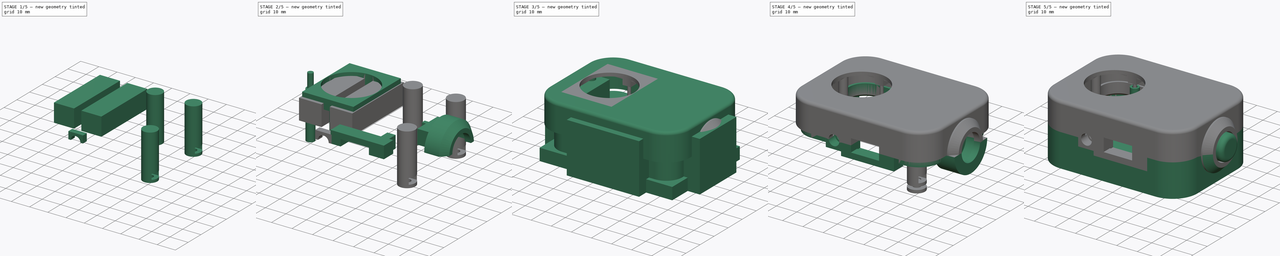
[diagram: build sequence overview — one tinted view per stage of 5, left to right]
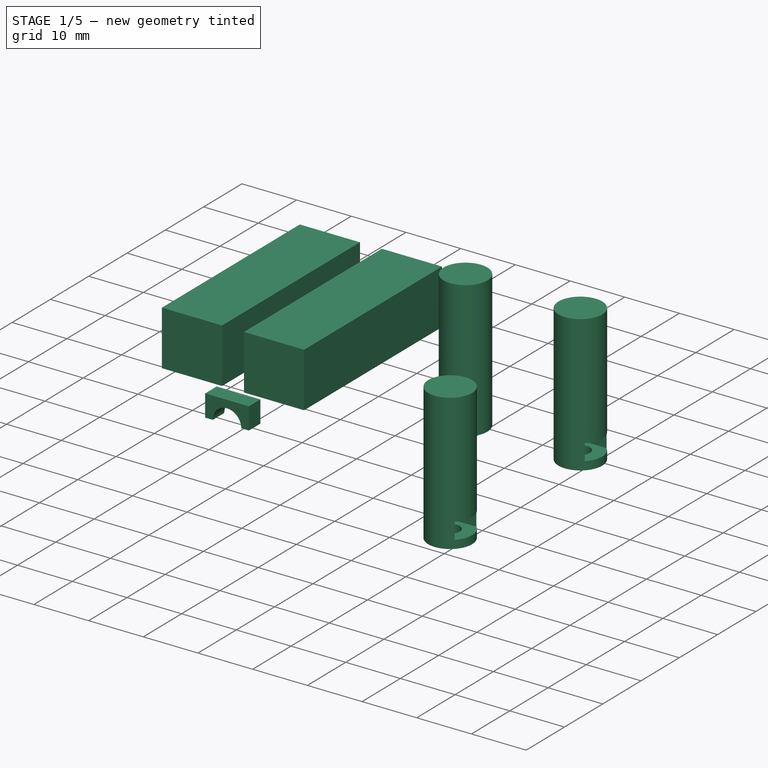
[diagram: stage 1 of 5 — iso view after this stage's code; geometry added in this stage tinted green]
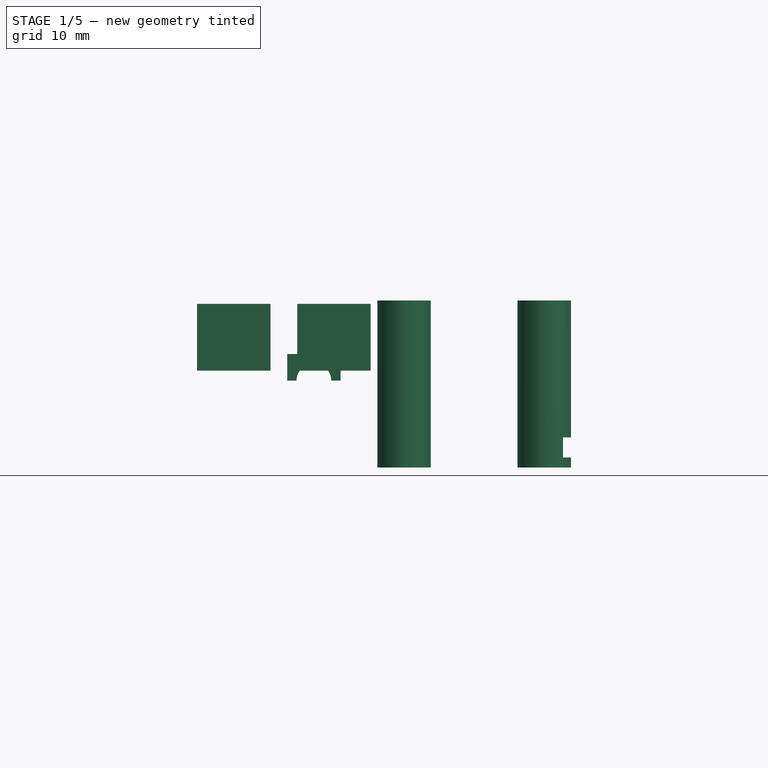
[diagram: stage 1 of 5 — front view after this stage's code; geometry added in this stage tinted green]
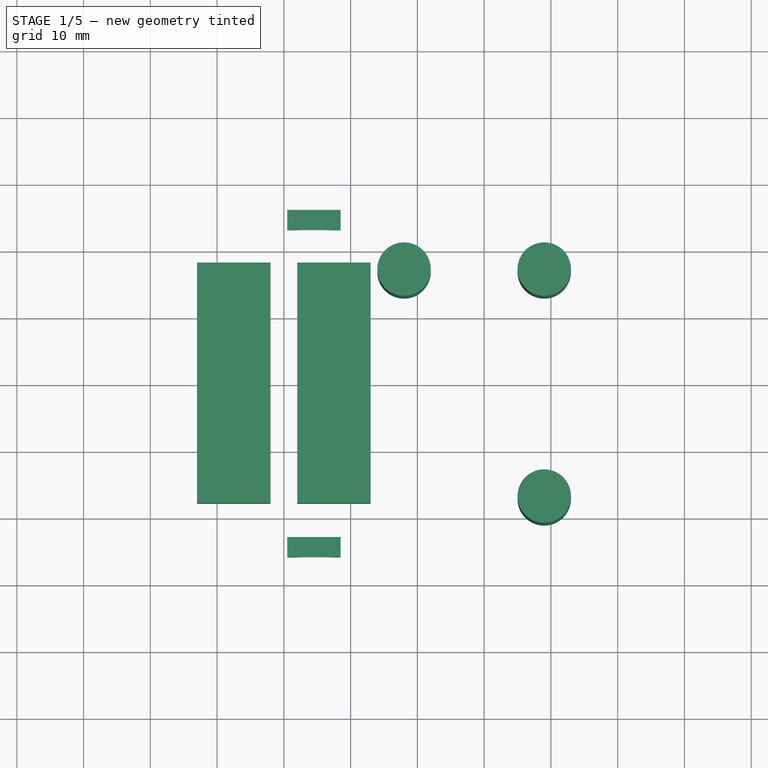
[diagram: stage 1 of 5 — top view after this stage's code; geometry added in this stage tinted green]
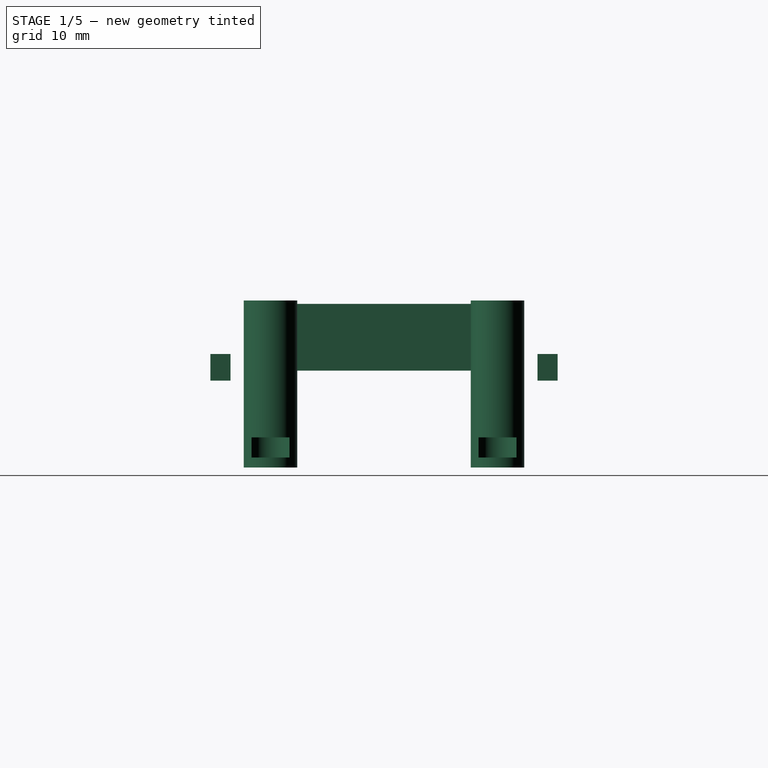
[diagram: stage 1 of 5 — right view after this stage's code; geometry added in this stage tinted green]
FCSTD DOCUMENT  (FreeCAD 0.16R6704 (Git))
Label: model
License: All rights reserved
LicenseURL: http://en.wikipedia.org/wiki/All_rights_reserved
objects: Part::Box×54, Part::MultiFuse×44, Part::Cylinder×38, Part::Cut×29, Sketcher::SketchObject×21, PartDesign::Pad×12, Part::Fillet×9, Part::Offset×5, Part::Chamfer×4, Part::Revolution×4, PartDesign::Revolution×2, PartDesign::PolarPattern×2, Part::Extrusion×2, PartDesign::Pocket×1
note: 242 computed .brp shape members not serialized (recipe doc carries the construction recipe); baked Part::Feature solids carry a one-line shape summary decoded from their .brp

FEATURE [Sketcher::SketchObject] Sketch012  label="LED Sketch001"
  sketch-geometry (6):
    g0: LineSegment StartX=0 StartY=0 StartZ=0 EndX=-3.05 EndY=0 EndZ=0
    g1: LineSegment StartX=-3.05 StartY=0 StartZ=0 EndX=-3.05 EndY=1.1 EndZ=0
    g2: LineSegment StartX=-3.05 StartY=1.1 StartZ=0 EndX=-2.6 EndY=1.1 EndZ=0
    g3: LineSegment StartX=-2.6 StartY=1.1 StartZ=0 EndX=-2.6 EndY=7.19 EndZ=0
    g4: ArcOfCircle CenterX=0 CenterY=7.19 CenterZ=0 NormalX=0 NormalY=0 NormalZ=1 Radius=2.6 StartAngle=1.5708 EndAngle=3.14159
    g5: LineSegment StartX=0 StartY=9.79 StartZ=0 EndX=0 EndY=0 EndZ=0
  constraints (18):
    c: Horizontal(g0)
    c: Vertical(g1)
    c: Horizontal(g2)
    c: Vertical(g3)
    c: Coincident(g3,g4)
    c: Coincident(g2,g3)
    c: Coincident(g1,g2)
    c: Coincident(g0,g1)
    c: DistanceY(g1,g1) = 1.1
    c: DistanceY(g2,g4) = 8.69
    c: DistanceY(g4,g3) = 0
    c: Radius(g4) = 2.6
    c: Angle(g4) = 1.5708
    c: DistanceX(g2,g2) = 0.45
    c: Vertical(g5)
    c: Coincident(g4,g5)
    c: Coincident(g0,g5)
    c: Coincident(g0,g-1)
FEATURE [Part::Revolution] Revolve002  label="LED Widened"
  Angle = 360
  Axis = (0,1,0)
  Base = (0,0,0)
  Solid = true
  Source = -> Sketch012
FEATURE [Part::Cylinder] Cylinder  label="LED Tube"
  Angle = 360
  Height = 5
  Placement = pos=(0,1,0) rot=(1,0,0;1.5708rad)
  Radius = 2.3
FEATURE [Part::MultiFuse] Fusion004  label="LED Hole"
  Shapes = -> [Revolve002,Cylinder]
FEATURE [Part::Box] Box001  label="LED Cube Up"
  Height = 4
  Length = 8
  Placement = pos=(-4,2,0) rot=(0,0,1;0rad)
  Width = 3
FEATURE [Part::Cut] Cut002  label="LED Slot Up"
  Base = -> Box001
  Placement = pos=(24.5,-21,16) rot=(0,0,1;3.14159rad)
  Tool = -> Fusion004
FEATURE [Sketcher::SketchObject] Sketch033  label="LED Sketch002"
  sketch-geometry (6):
    g0: LineSegment StartX=0 StartY=0 StartZ=0 EndX=-3.05 EndY=0 EndZ=0
    g1: LineSegment StartX=-3.05 StartY=0 StartZ=0 EndX=-3.05 EndY=1.1 EndZ=0
    g2: LineSegment StartX=-3.05 StartY=1.1 StartZ=0 EndX=-2.6 EndY=1.1 EndZ=0
    g3: LineSegment StartX=-2.6 StartY=1.1 StartZ=0 EndX=-2.6 EndY=7.19 EndZ=0
    g4: ArcOfCircle CenterX=0 CenterY=7.19 CenterZ=0 NormalX=0 NormalY=0 NormalZ=1 Radius=2.6 StartAngle=1.5708 EndAngle=3.14159
    g5: LineSegment StartX=0 StartY=9.79 StartZ=0 EndX=0 EndY=0 EndZ=0
  constraints (18):
    c: Horizontal(g0)
    c: Vertical(g1)
    c: Horizontal(g2)
    c: Vertical(g3)
    c: Coincident(g3,g4)
    c: Coincident(g2,g3)
    c: Coincident(g1,g2)
    c: Coincident(g0,g1)
    c: DistanceY(g1,g1) = 1.1
    c: DistanceY(g2,g4) = 8.69
    c: DistanceY(g4,g3) = 0
    c: Radius(g4) = 2.6
    c: Angle(g4) = 1.5708
    c: DistanceX(g2,g2) = 0.45
    c: Vertical(g5)
    c: Coincident(g4,g5)
    c: Coincident(g0,g5)
    c: Coincident(g0,g-1)
FEATURE [Part::Revolution] Revolve004  label="LED Widened001"
  Angle = 360
  Axis = (0,1,0)
  Base = (0,0,0)
  Solid = true
  Source = -> Sketch033
FEATURE [Part::Cylinder] Cylinder012  label="LED Tube001"
  Angle = 360
  Height = 5
  Placement = pos=(0,1,0) rot=(1,0,0;1.5708rad)
  Radius = 2.3
FEATURE [Part::MultiFuse] Fusion027  label="LED Hole001"
  Shapes = -> [Revolve004,Cylinder012]
FEATURE [Part::Box] Box026  label="LED Cube Up001"
  Height = 4
  Length = 8
  Placement = pos=(-4,2,0) rot=(0,0,1;0rad)
  Width = 3
FEATURE [Part::Cut] Cut013  label="LED Slot Up001"
  Base = -> Box026
  Placement = pos=(24.5,21,16) rot=(0,0,1;0rad)
  Tool = -> Fusion027
FEATURE [Part::Cylinder] Cylinder026  label="Cylinder043"
  Angle = 360
  Height = 25
  Radius = 4
FEATURE [Part::Cylinder] Cylinder027  label="Cylinder044"
  Angle = 360
  Height = 15
  Radius = 1.75
FEATURE [Part::Cylinder] Cylinder028  label="Cylinder045"
  Angle = 360
  Height = 3
  Placement = pos=(0,0,1.5) rot=(0,0,1;0rad)
  Radius = 3.1
FEATURE [Part::Box] Box050  label="Cube025"
  Height = 3
  Length = 5.7
  Placement = pos=(0,-2.85,1.5) rot=(0,0,1;0rad)
  Width = 5.7
FEATURE [Part::MultiFuse] Fusion041
  Shapes = -> [Cylinder028,Cylinder027,Box050]
FEATURE [Part::Box] Box051  label="Cube026"
  Height = 10
  Length = 3
  Placement = pos=(-1.5,-3.35,0) rot=(0,0,1;0rad)
  Width = 0.5
FEATURE [Part::Box] Box052  label="Cube027"
  Height = 10
  Length = 3
  Placement = pos=(-1.5,2.85,0) rot=(0,0,1;0rad)
  Width = 0.5
FEATURE [Part::Cut] Cut025
  Base = -> Cylinder026
  Tool = -> Fusion041
FEATURE [Part::MultiFuse] Fusion042  label="Nut Slot001"
  Placement = pos=(38,17,0) rot=(0,0,1;1.5708rad)
  Shapes = -> [Cut025,Box052,Box051]
FEATURE [Part::Cylinder] Cylinder029  label="Cylinder035"
  Angle = 360
  Height = 25
  Radius = 4
FEATURE [Part::Cylinder] Cylinder030  label="Cylinder036"
  Angle = 360
  Height = 15
  Radius = 1.75
FEATURE [Part::Cylinder] Cylinder031  label="Cylinder046"
  Angle = 360
  Height = 3
  Placement = pos=(0,0,1.5) rot=(0,0,1;0rad)
  Radius = 3.1
FEATURE [Part::Box] Box053  label="Cube028"
  Height = 3
  Length = 5.7
  Placement = pos=(0,-2.85,1.5) rot=(0,0,1;0rad)
  Width = 5.7
FEATURE [Part::MultiFuse] Fusion043
  Shapes = -> [Cylinder031,Cylinder030,Box053]
FEATURE [Part::Box] Box054  label="Cube029"
  Height = 10
  Length = 3
  Placement = pos=(-1.5,-3.35,0) rot=(0,0,1;0rad)
  Width = 0.5
FEATURE [Part::Box] Box055  label="Cube030"
  Height = 10
  Length = 3
  Placement = pos=(-1.5,2.85,0) rot=(0,0,1;0rad)
  Width = 0.5
FEATURE [Part::Cut] Cut026
  Base = -> Cylinder029
  Tool = -> Fusion043
FEATURE [Part::MultiFuse] Fusion044  label="Nut Slot002"
  Placement = pos=(59,17,0) rot=(0,0,1;0rad)
  Shapes = -> [Cut026,Box055,Box054]
FEATURE [Part::Cylinder] Cylinder032  label="Cylinder047"
  Angle = 360
  Height = 25
  Radius = 4
FEATURE [Part::Cylinder] Cylinder033  label="Cylinder048"
  Angle = 360
  Height = 15
  Radius = 1.75
FEATURE [Part::Cylinder] Cylinder034  label="Cylinder049"
  Angle = 360
  Height = 3
  Placement = pos=(0,0,1.5) rot=(0,0,1;0rad)
  Radius = 3.1
FEATURE [Part::Box] Box056  label="Cube031"
  Height = 3
  Length = 5.7
  Placement = pos=(0,-2.85,1.5) rot=(0,0,1;0rad)
  Width = 5.7
FEATURE [Part::MultiFuse] Fusion045
  Shapes = -> [Cylinder034,Cylinder033,Box056]
FEATURE [Part::Box] Box057  label="Cube032"
  Height = 10
  Length = 3
  Placement = pos=(-1.5,-3.35,0) rot=(0,0,1;0rad)
  Width = 0.5
FEATURE [Part::Box] Box058  label="Cube033"
  Height = 10
  Length = 3
  Placement = pos=(-1.5,2.85,0) rot=(0,0,1;0rad)
  Width = 0.5
FEATURE [Part::Cut] Cut027
  Base = -> Cylinder032
  Tool = -> Fusion045
FEATURE [Part::MultiFuse] Fusion046  label="Nut Slot003"
  Placement = pos=(59,-17,0) rot=(0,0,1;0rad)
  Shapes = -> [Cut027,Box058,Box057]
FEATURE [Part::MultiFuse] Fusion047  label="Nut Slots"
  Placement = pos=(0,0,3) rot=(0,0,1;0rad)
  Shapes = -> [Fusion042,Fusion046,Fusion044]
FEATURE [Part::Box] Box059  label="Cube034"
  Height = 10
  Length = 11
  Placement = pos=(7,-18,17.5) rot=(0,0,1;0rad)
  Width = 36
FEATURE [Part::Box] Box060  label="Cube035"
  Height = 10
  Length = 11
  Placement = pos=(22,-18,17.5) rot=(0,0,1;0rad)
  Width = 36
FEATURE [Part::MultiFuse] Fusion054  label="PIR Solder Dodging"
  Shapes = -> [Box059,Box060]
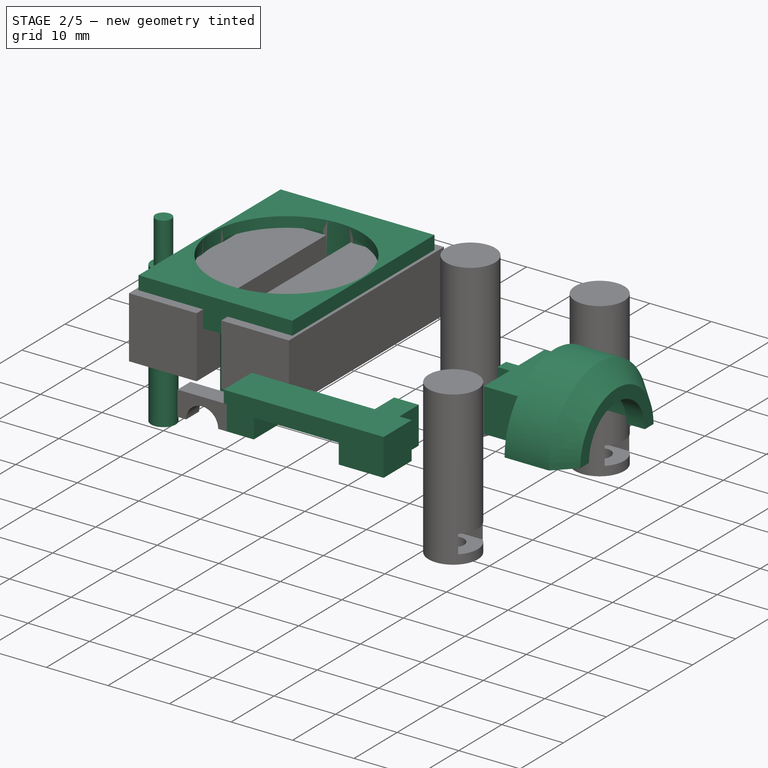
[diagram: stage 2 of 5 — iso view after this stage's code; geometry added in this stage tinted green]
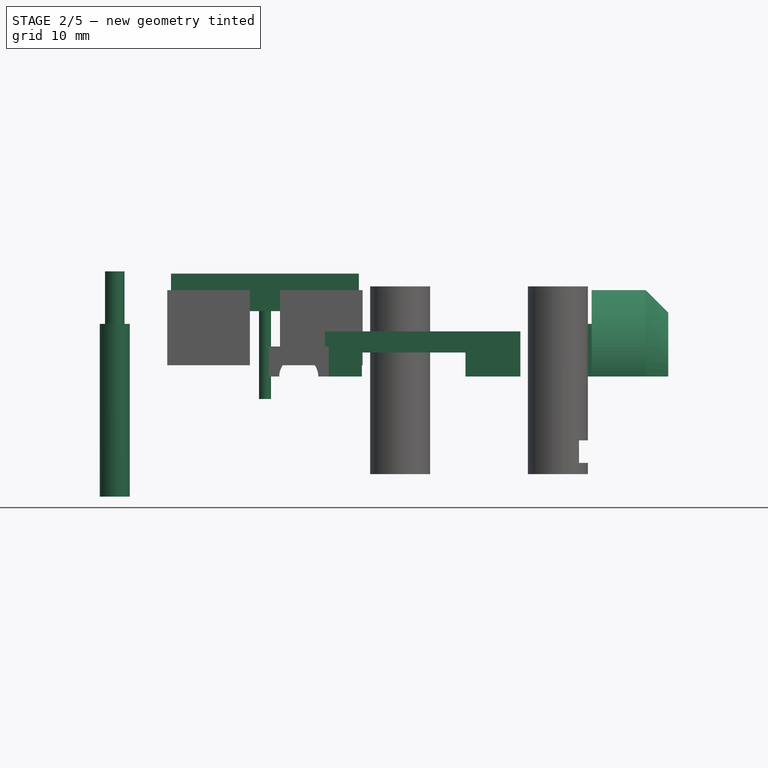
[diagram: stage 2 of 5 — front view after this stage's code; geometry added in this stage tinted green]
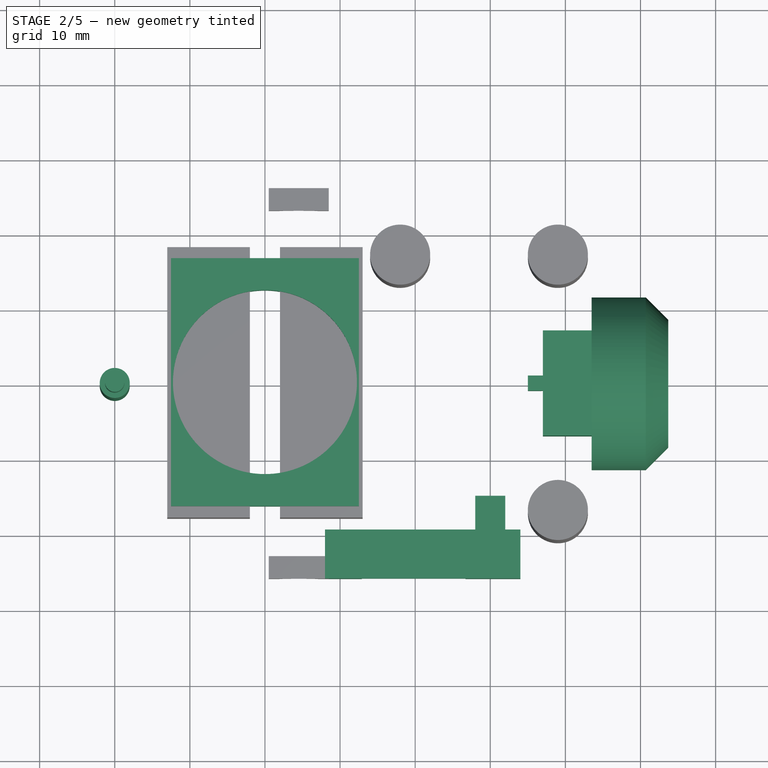
[diagram: stage 2 of 5 — top view after this stage's code; geometry added in this stage tinted green]
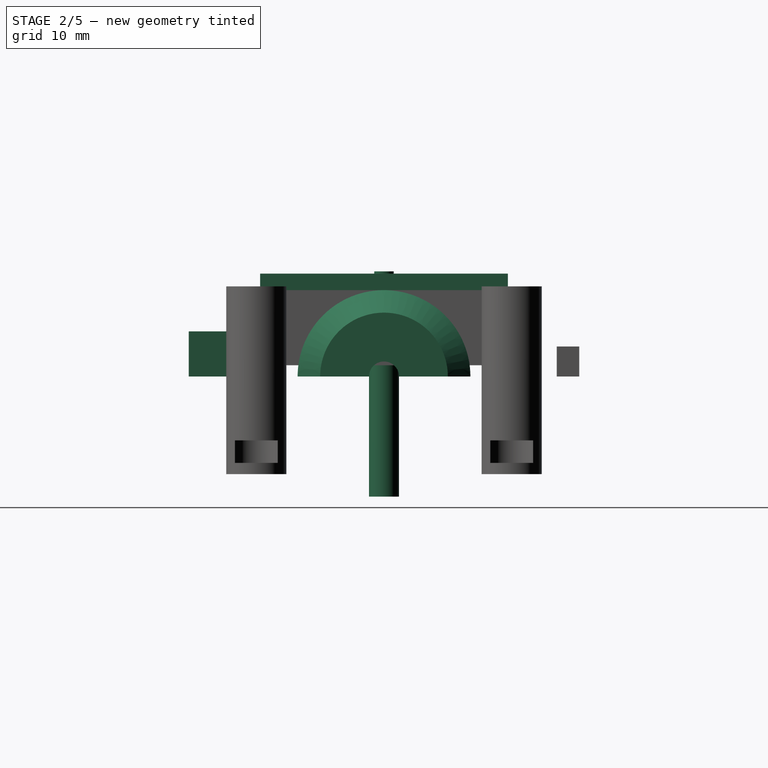
[diagram: stage 2 of 5 — right view after this stage's code; geometry added in this stage tinted green]
FEATURE [Sketcher::SketchObject] Sketch017  label="PIR Board Sketch001"
  Placement = pos=(0,0,10) rot=(0,0,1;0rad)
  sketch-geometry (4):
    g0: LineSegment StartX=-16.17 StartY=12.015 StartZ=0 EndX=16.17 EndY=12.015 EndZ=0
    g1: LineSegment StartX=16.17 StartY=12.015 StartZ=0 EndX=16.17 EndY=-12.015 EndZ=0
    g2: LineSegment StartX=16.17 StartY=-12.015 StartZ=0 EndX=-16.17 EndY=-12.015 EndZ=0
    g3: LineSegment StartX=-16.17 StartY=-12.015 StartZ=0 EndX=-16.17 EndY=12.015 EndZ=0
  constraints (12):
    c: Coincident(g0,g1)
    c: Coincident(g1,g2)
    c: Coincident(g2,g3)
    c: Coincident(g3,g0)
    c: Horizontal(g0)
    c: Horizontal(g2)
    c: Vertical(g1)
    c: Vertical(g3)
    c: DistanceX(g0,g0) = 32.34
    c: DistanceY(g3,g3) = 24.03
    c: DistanceX(g-1,g0) = 16.17
    c: DistanceY(g-1,g0) = 12.015
FEATURE [Sketcher::SketchObject] Sketch019  label="PIR Bulb Sketch001"
  Placement = pos=(0,0,0) rot=(0.57735,0.57735,0.57735;2.0944rad)
  sketch-geometry (3):
    g0: ArcOfCircle CenterX=0 CenterY=0 CenterZ=0 NormalX=0 NormalY=0 NormalZ=1 Radius=12 StartAngle=1.5708 EndAngle=3.14159
    g1: LineSegment StartX=-12 StartY=0 StartZ=0 EndX=0 EndY=0 EndZ=0
    g2: LineSegment StartX=0 StartY=0 StartZ=0 EndX=0 EndY=12 EndZ=0
  constraints (8):
    c: Coincident(g2,g0)
    c: Coincident(g0,g1)
    c: Horizontal(g1)
    c: Vertical(g2)
    c: Coincident(g2,g0)
    c: Coincident(g0,g1)
    c: Radius(g0) = 12
    c: Coincident(g0,g-1)
FEATURE [PartDesign::Pad] Pad015  label="PIR Board001"
  Length = 1.6
  Length2 = 100
  Placement = pos=(0,0,10) rot=(0,0,1;0rad)
  Sketch = -> Sketch017
  Type = 0
FEATURE [Sketcher::SketchObject] Sketch018  label="PIR Holes Sketch001"
  Placement = pos=(0,0,11.6) rot=(0,0,1;0rad)
  Support = -> Pad015 [Face6]
  sketch-geometry (2):
    g0: Circle CenterX=-14 CenterY=0 CenterZ=0 NormalX=0 NormalY=0 NormalZ=1 Radius=1
    g1: Circle CenterX=14 CenterY=0 CenterZ=0 NormalX=0 NormalY=0 NormalZ=1 Radius=1
  constraints (6):
    c: PointOnObject(g0,g-1)
    c: PointOnObject(g1,g-1)
    c: Radius(g0) = 1
    c: Radius(g1) = 1
    c: DistanceX(g0,g-1) = 14
    c: DistanceX(g-1,g1) = 14
FEATURE [PartDesign::Pocket] Pocket001  label="PIR Board With Holes001"
  Length = 5
  Placement = pos=(0,0,10) rot=(0,0,1;0rad)
  Sketch = -> Sketch018
  Type = 1
FEATURE [Part::Revolution] Revolve003  label="PIR Bulb Sphere001"
  Angle = 360
  Axis = (0,0,1)
  Base = (0,0,0)
  Solid = true
  Source = -> Sketch019
FEATURE [Part::Box] Box007  label="PIR Bulb Base001"
  Height = 3.4
  Length = 24
  Placement = pos=(-12,-12,-3.4) rot=(0,0,1;0rad)
  Width = 24
FEATURE [Part::MultiFuse] Fusion014  label="PIR Bulb001"
  Placement = pos=(0,0,15) rot=(0,0,1;0rad)
  Shapes = -> [Revolve003,Box007]
FEATURE [Part::Box] Box008  label="PIR Offset001"
  Height = 10
  Length = 24
  Placement = pos=(-12,-12,0) rot=(0,0,1;0rad)
  Width = 24
FEATURE [Part::MultiFuse] Fusion015  label="PIR Mold Inner"
  Shapes = -> [Box008,Fusion014,Pocket001]
FEATURE [Part::Cylinder] Cylinder009  label="PIR Mold Cylinder"
  Angle = 360
  Height = 31
  Radius = 12.25
FEATURE [Part::Box] Box009  label="PIR Box Base"
  Height = 5
  Length = 33
  Placement = pos=(-16.5,-12.5,11.7) rot=(0,0,1;0rad)
  Width = 25
FEATURE [Part::Cut] Cut006  label="PIR Box Base Holed"
  Base = -> Box009
  Tool = -> Cylinder009
FEATURE [Part::Cut] Cut007  label="PIR Box Top"
  Base = -> Cut006
  Tool = -> Fusion015
FEATURE [Part::Cylinder] Cylinder010  label="PIR Support 1"
  Angle = 360
  Height = 16
  Placement = pos=(14,0,0) rot=(0,0,1;0rad)
  Radius = 0.8
FEATURE [Part::Cylinder] Cylinder011  label="PIR Support 2"
  Angle = 360
  Height = 16
  Placement = pos=(-14,0,0) rot=(0,0,1;0rad)
  Radius = 0.8
FEATURE [Part::MultiFuse] Fusion016  label="PIR Box"
  Placement = pos=(20,0,13) rot=(0,0,1;1.5708rad)
  Shapes = -> [Cut007,Cylinder010,Cylinder011]
FEATURE [Sketcher::SketchObject] Sketch029  label="TB Base Sketch002"
  sketch-geometry (4):
    g0: LineSegment StartX=-3 StartY=3 StartZ=0 EndX=3 EndY=3 EndZ=0
    g1: LineSegment StartX=3 StartY=3 StartZ=0 EndX=3 EndY=-3 EndZ=0
    g2: LineSegment StartX=3 StartY=-3 StartZ=0 EndX=-3 EndY=-3 EndZ=0
    g3: LineSegment StartX=-3 StartY=-3 StartZ=0 EndX=-3 EndY=3 EndZ=0
  constraints (12):
    c: Coincident(g0,g1)
    c: Coincident(g1,g2)
    c: Coincident(g2,g3)
    c: Coincident(g3,g0)
    c: Horizontal(g0)
    c: Horizontal(g2)
    c: Vertical(g1)
    c: Vertical(g3)
    c: DistanceX(g0,g0) = 6
    c: DistanceY(g3,g3) = 6
    c: DistanceY(g-1,g0) = 3
    c: DistanceX(g0,g-1) = 3
FEATURE [PartDesign::Pad] Pad021  label="TB Base002"
  Length = 3.3
  Length2 = 100
  Sketch = -> Sketch029
  Type = 0
FEATURE [Sketcher::SketchObject] Sketch030  label="TB Button Sketch002"
  Placement = pos=(0,0,3.3) rot=(0,0,1;0rad)
  Support = -> Pad021 [Face6]
  sketch-geometry (1):
    g0: Circle CenterX=0 CenterY=0 CenterZ=0 NormalX=0 NormalY=0 NormalZ=1 Radius=1.75
  constraints (2):
    c: Coincident(g0,g-1)
    c: Radius(g0) = 1.75
FEATURE [PartDesign::Pad] Pad022  label="TB Button002"
  Length = 1.7
  Length2 = 100
  Sketch = -> Sketch030
  Type = 0
FEATURE [Sketcher::SketchObject] Sketch031  label="TB Bump Sketch002"
  Placement = pos=(0,0,3.3) rot=(0,0,1;0rad)
  Support = -> Pad022 [Face5]
  sketch-geometry (1):
    g0: Circle CenterX=2.25 CenterY=2.25 CenterZ=0 NormalX=0 NormalY=0 NormalZ=1 Radius=0.5
  constraints (3):
    c: Radius(g0) = 0.5
    c: DistanceY(g-1,g0) = 2.25
    c: DistanceX(g0) = 2.25
FEATURE [PartDesign::Pad] Pad023  label="TB Bump002"
  Length = 0.5
  Length2 = 100
  Sketch = -> Sketch031
  Type = 0
FEATURE [PartDesign::PolarPattern] PolarPattern002
  Angle = 360
  Axis = -> Sketch031 [N_Axis]
  Occurrences = 4
  Originals = -> [Pad023]
FEATURE [Part::MultiFuse] Fusion023  label="Tactile Button Mold Inner001"
  Shapes = -> [PolarPattern002,Pad022,Pad021]
FEATURE [Part::Offset] Offset004  label="Tactile Button Mold001"
  Fill = false
  Intersection = false
  Join = 0
  Mode = 0
  SelfIntersection = false
  Source = -> Fusion023
  Value = 0.2
FEATURE [Part::Box] Box020  label="Cube005"
  Height = 3
  Length = 7
  Placement = pos=(0,-7,0) rot=(0,0,1;0rad)
  Width = 14
FEATURE [Part::Box] Box021  label="Cube006"
  Height = 10
  Length = 4.8
  Placement = pos=(2.2,-1,-2) rot=(0,0,1;0rad)
  Width = 2
FEATURE [Part::Box] Box022  label="Cube007"
  Height = 8
  Length = 3
  Placement = pos=(4,-7,0) rot=(0,0,1;0rad)
  Width = 14
FEATURE [Part::Box] Box023  label="Cube008"
  Height = 8
  Length = 7
  Placement = pos=(0,4,0) rot=(0,0,1;0rad)
  Width = 3
FEATURE [Part::Box] Box024  label="Cube009"
  Height = 8
  Length = 7
  Placement = pos=(0,-7,0) rot=(0,0,1;0rad)
  Width = 3
FEATURE [Part::MultiFuse] Fusion024  label="Tactile Button Box Base001"
  Placement = pos=(0,0,0) rot=(0,0,1;3.14159rad)
  Shapes = -> [Box020,Box023,Box021,Box022,Box024]
FEATURE [Part::Cut] Cut011
  Base = -> Fusion024
  Tool = -> Offset004
FEATURE [Sketcher::SketchObject] Sketch032  label="Button Socket Sketch001"
  Placement = pos=(0,0,0) rot=(0.57735,0.57735,0.57735;2.0944rad)
  sketch-geometry (8):
    g0: LineSegment StartX=6.5 StartY=16.7 StartZ=0 EndX=6.5 EndY=13.7 EndZ=0
    g1: LineSegment StartX=6.5 StartY=13.7 StartZ=0 EndX=8.5 EndY=13.7 EndZ=0
    g2: LineSegment StartX=8.5 StartY=13.7 StartZ=0 EndX=8.5 EndY=8.5 EndZ=0
    g3: LineSegment StartX=8.5 StartY=8.5 StartZ=0 EndX=2 EndY=8.5 EndZ=0
    g4: LineSegment StartX=2 StartY=8.5 StartZ=0 EndX=2 EndY=6.5 EndZ=0
    g5: LineSegment StartX=6.5 StartY=16.7 StartZ=0 EndX=11.5 EndY=16.7 EndZ=0
    g6: LineSegment StartX=11.5 StartY=16.7 StartZ=0 EndX=11.5 EndY=6.5 EndZ=0
    g7: LineSegment StartX=2 StartY=6.5 StartZ=0 EndX=11.5 EndY=6.5 EndZ=0
  constraints (24):
    c: Coincident(g0,g1)
    c: Coincident(g1,g2)
    c: Coincident(g3,g2)
    c: Coincident(g4,g3)
    c: Vertical(g0)
    c: Horizontal(g1)
    c: Vertical(g2)
    c: Horizontal(g3)
    c: Vertical(g4)
    c: DistanceY(g0,g0) = 3
    c: DistanceX(g1,g1) = 2
    c: DistanceY(g2,g2) = 5.2
    c: DistanceY(g4,g4) = 2
    c: DistanceX(g4) = 2
    c: DistanceX(g0) = 6.5
    c: DistanceY(g4) = 6.5
    c: Coincident(g4,g7)
    c: Coincident(g7,g6)
    c: Coincident(g6,g5)
    c: Coincident(g5,g0)
    c: Horizontal(g5)
    c: Horizontal(g7)
    c: Vertical(g6)
    c: DistanceX(g5,g5) = 5
FEATURE [PartDesign::Revolution] Revolution002  label="Button Socket001"
  Angle = 180
  Axis = (0,0,1)
  Base = (0,0,0)
  Placement = pos=(0,0,0) rot=(0.57735,0.57735,0.57735;2.0944rad)
  ReferenceAxis = -> Sketch032 [V_Axis]
  Sketch = -> Sketch032
FEATURE [Part::MultiFuse] Fusion026  label="Button Box Lower"
  Placement = pos=(57,0,16) rot=(0,1,0;1.5708rad)
  Shapes = -> [Revolution002,Cut011]
FEATURE [Sketcher::SketchObject] Sketch020  label="Sharp Board Sketch001"
  sketch-geometry (4):
    g0: LineSegment StartX=24 StartY=8.89 StartZ=0 EndX=0 EndY=8.89 EndZ=0
    g1: LineSegment StartX=0 StartY=8.89 StartZ=0 EndX=0 EndY=0 EndZ=0
    g2: LineSegment StartX=0 StartY=0 StartZ=0 EndX=24 EndY=0 EndZ=0
    g3: LineSegment StartX=24 StartY=0 StartZ=0 EndX=24 EndY=8.89 EndZ=0
  constraints (11):
    c: Coincident(g0,g1)
    c: Coincident(g1,g2)
    c: Coincident(g2,g3)
    c: Coincident(g3,g0)
    c: Horizontal(g0)
    c: Horizontal(g2)
    c: Vertical(g1)
    c: Vertical(g3)
    c: Coincident(g1,g-1)
    c: DistanceY(g0) = 8.89
    c: DistanceX(g0) = 24
FEATURE [PartDesign::Pad] Pad016  label="Sharp Board001"
  Length = 1.5748
  Length2 = 100
  Sketch = -> Sketch020
  Type = 0
FEATURE [Sketcher::SketchObject] Sketch021  label="Sharp Sensor Sketch001"
  Placement = pos=(0,0,0) rot=(0.57735,0.57735,0.57735;2.0944rad)
  sketch-geometry (8):
    g0: LineSegment StartX=0 StartY=0 StartZ=0 EndX=7 EndY=0 EndZ=0
    g1: LineSegment StartX=7 StartY=0 StartZ=0 EndX=7 EndY=3.25 EndZ=0
    g2: LineSegment StartX=0 StartY=0 StartZ=0 EndX=0 EndY=3.25 EndZ=0
    g3: LineSegment StartX=0 StartY=3.25 StartZ=0 EndX=0.4 EndY=3.25 EndZ=0
    g4: LineSegment StartX=7 StartY=3.25 StartZ=0 EndX=6.6 EndY=3.25 EndZ=0
    g5: LineSegment StartX=6.6 StartY=3.25 StartZ=0 EndX=6.6 EndY=7.95 EndZ=0
    g6: LineSegment StartX=0.4 StartY=3.25 StartZ=0 EndX=0.4 EndY=7.95 EndZ=0
    g7: LineSegment StartX=0.4 StartY=7.95 StartZ=0 EndX=6.6 EndY=7.95 EndZ=0
  constraints (23):
    c: Horizontal(g7)
    c: Vertical(g2)
    c: Horizontal(g3)
    c: Horizontal(g4)
    c: Vertical(g5)
    c: Vertical(g6)
    c: Vertical(g1)
    c: Horizontal(g0)
    c: DistanceX(g0,g0) = 7
    c: DistanceY(g5,g5) = 4.7
    c: DistanceY(g6,g6) = 4.7
    c: DistanceX(g3,g3) = 0.4
    c: DistanceX(g4,g4) = 0.4
    c: Coincident(g0,g2)
    c: Coincident(g0,g1)
    c: Coincident(g1,g4)
    c: Coincident(g2,g3)
    c: Coincident(g3,g6)
    c: Coincident(g4,g5)
    c: Coincident(g6,g7)
    c: Coincident(g5,g7)
    c: DistanceY(g0,g5) = 7.95
    c: Coincident(g0,g-1)
FEATURE [Part::Extrusion] Extrude001  label="Sharp Sensor001"
  Base = -> Sketch021
  Dir = (13.6,0,0)
  Placement = pos=(4,1,1.5748) rot=(0,0,1;0rad)
  Solid = true
FEATURE [Part::MultiFuse] Fusion017  label="Sharp Mold"
  Shapes = -> [Pad016,Extrude001]
FEATURE [Part::Offset] Offset001  label="Sharp Mold Widened Upper"
  Fill = false
  Intersection = false
  Join = 0
  Mode = 0
  Placement = pos=(1,1.5,-2.8) rot=(0,0,1;0rad)
  SelfIntersection = false
  Source = -> Fusion017
  Value = 0.1
FEATURE [Part::Box] Box013  label="Sharp Box Top001"
  Height = 6.5
  Length = 26
  Width = 6
FEATURE [Part::Box] Box014  label="Sharp Box Slot001"
  Height = 8
  Length = 4
  Placement = pos=(20,0,-4.5) rot=(0,0,1;0rad)
  Width = 6
FEATURE [Part::MultiFuse] Fusion019  label="Sharp Box Upper Body"
  Placement = pos=(0,6,0) rot=(0,0,1;0rad)
  Shapes = -> [Box014,Box013]
FEATURE [Part::Cut] Cut009  label="Sharp Box Upper"
  Base = -> Fusion019
  Placement = pos=(28,-19.5,10) rot=(1,0,0;1.5708rad)
  Tool = -> Offset001
FEATURE [Part::MultiFuse] Fusion028  label="Higher Slots"
  Shapes = -> [Cut013,Cut002,Cut009,Fusion026,Fusion016]
FEATURE [Part::Cylinder] Cylinder017  label="Cylinder Outer001"
  Angle = 360
  Height = 23
  Radius = 2
FEATURE [Part::Cylinder] Cylinder018  label="Cylinder Inner001"
  Angle = 360
  Height = 30
  Radius = 1.3
FEATURE [Part::Chamfer] Chamfer003  label="Upper Slots Chamfered"
  Base = -> Fusion028
  Edges = 1 edges r=3: [Edge172]
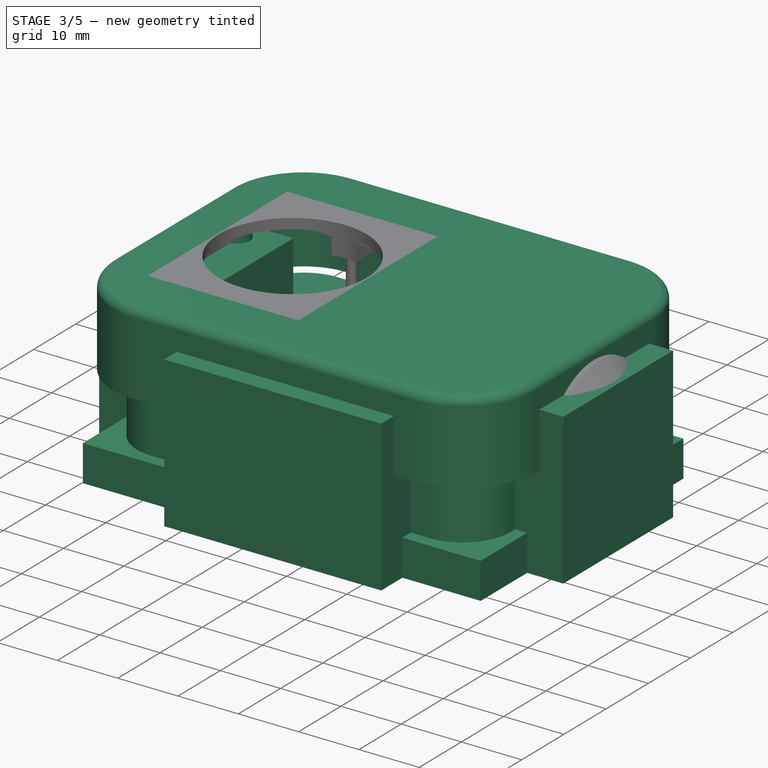
[diagram: stage 3 of 5 — iso view after this stage's code; geometry added in this stage tinted green]
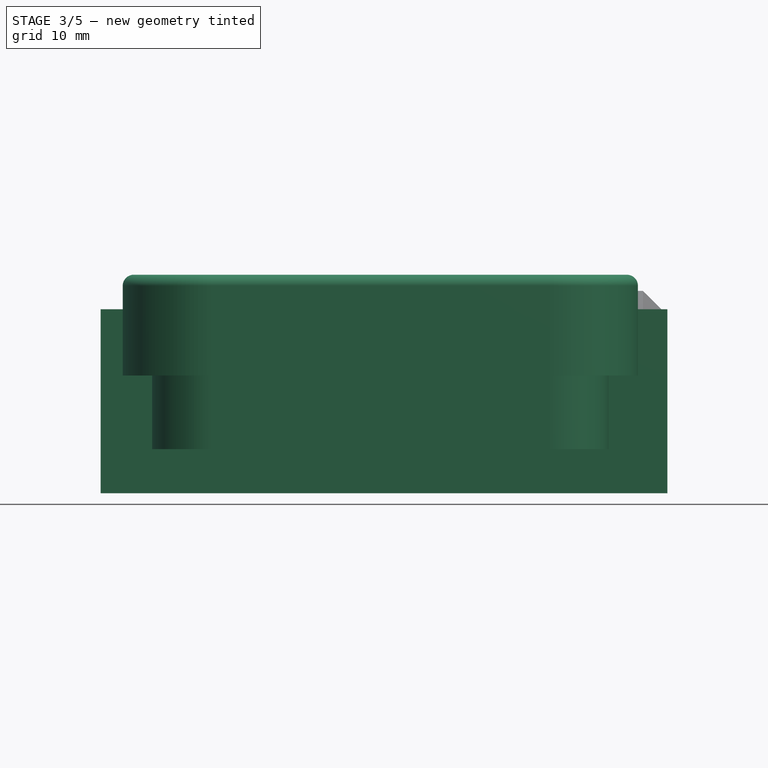
[diagram: stage 3 of 5 — front view after this stage's code; geometry added in this stage tinted green]
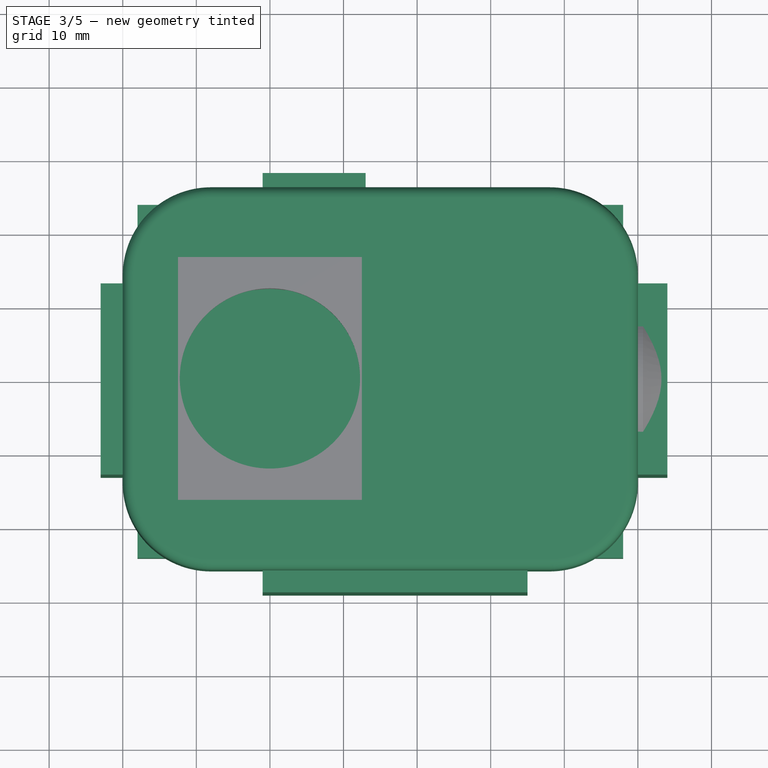
[diagram: stage 3 of 5 — top view after this stage's code; geometry added in this stage tinted green]
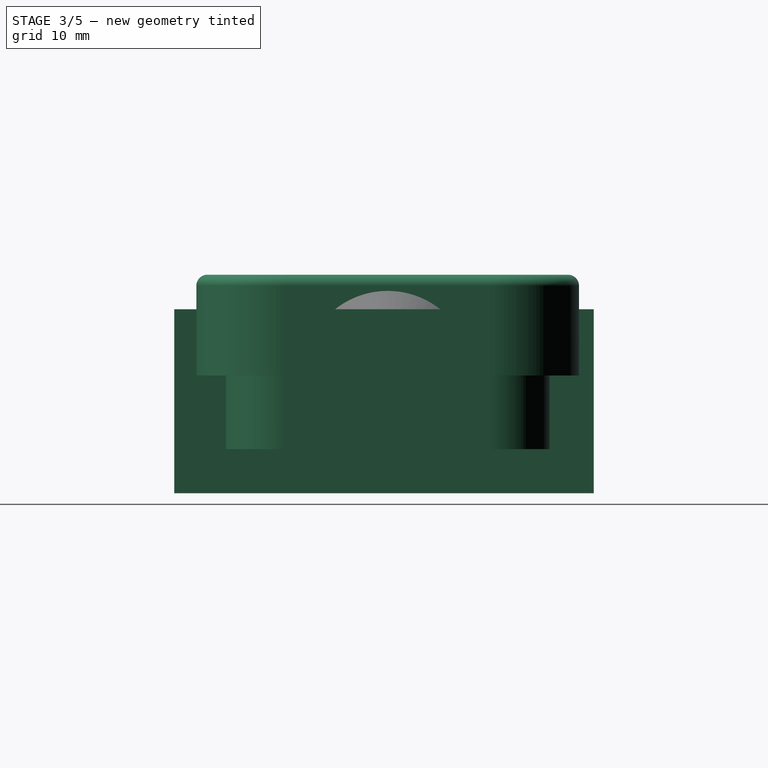
[diagram: stage 3 of 5 — right view after this stage's code; geometry added in this stage tinted green]
FEATURE [Part::Box] Box033  label="Lower Walls Outer001"
  Height = 13.7
  Length = 70
  Placement = pos=(0,-26,0) rot=(0,0,1;0rad)
  Width = 52
FEATURE [Part::Box] Box034  label="Lower Walls Inner001"
  Height = 16
  Length = 66
  Placement = pos=(2,-24,0) rot=(0,0,1;0rad)
  Width = 48
FEATURE [Part::Fillet] Fillet003  label="Lower Walls Outer Rounded001"
  Base = -> Box033
  Edges = 4 edges r=12: [Edge1,Edge3,Edge5,Edge7]
FEATURE [Part::Fillet] Fillet004  label="Lower Walls Inner Rounded001"
  Base = -> Box034
  Edges = 4 edges r=10: [Edge1,Edge3,Edge5,Edge7]
FEATURE [Part::Cut] Cut015  label="Upper Walls Uncut"
  Base = -> Fillet003
  Placement = pos=(0,0,16) rot=(0,0,1;0rad)
  Tool = -> Fillet004
FEATURE [Part::Box] Box035  label="Background Panel001"
  Height = 3
  Length = 70
  Placement = pos=(0,-26,0) rot=(0,0,1;0rad)
  Width = 52
FEATURE [Part::Fillet] Fillet005  label="Front Panel Rounded Uncut"
  Base = -> Box035
  Edges = 4 edges r=12: [Edge1,Edge3,Edge5,Edge7]
  Placement = pos=(0,0,26.7) rot=(0,0,1;0rad)
FEATURE [Part::Box] Box036  label="Cube013"
  Height = 10
  Length = 24.8
  Placement = pos=(7.6,-16.4,22) rot=(0,0,1;0rad)
  Width = 32.8
FEATURE [Part::Box] Box037  label="Cube014"
  Height = 12
  Length = 5
  Placement = pos=(-1,-11,0) rot=(0,0,1;0rad)
  Width = 22
FEATURE [Part::Box] Box038  label="Cube015"
  Height = 7
  Length = 7
  Placement = pos=(21,-30,12.5) rot=(0,0,1;0rad)
  Width = 60
FEATURE [Part::Box] Box039  label="Cube016"
  Height = 11
  Length = 25
  Placement = pos=(28.5,-27,10.5) rot=(0,0,1;0rad)
  Width = 10
FEATURE [Part::Cylinder] Cylinder014  label="Cylinder001"
  Angle = 360
  Height = 5
  Placement = pos=(67,0,16) rot=(0,1,0;1.5708rad)
  Radius = 11
FEATURE [Part::MultiFuse] Fusion030
  Shapes = -> [Cylinder014,Box037,Box038,Box039]
FEATURE [Part::Cut] Cut016  label="Upper Walls"
  Base = -> Cut015
  Tool = -> Fusion030
FEATURE [Part::Cut] Cut017  label="Front Panel Rounded"
  Base = -> Fillet005
  Tool = -> Box036
FEATURE [Part::Cylinder] Cylinder015  label="Cylinder Outer"
  Angle = 360
  Height = 23
  Radius = 2
FEATURE [Part::Cylinder] Cylinder016  label="Cylinder Inner"
  Angle = 360
  Height = 30
  Radius = 1.3
FEATURE [Part::Cut] Cut018
  Base = -> Cylinder015
  Placement = pos=(4.65,-8.9,5.8) rot=(0,0,1;0rad)
  Tool = -> Cylinder016
FEATURE [Part::Cut] Cut019
  Base = -> Cylinder017
  Placement = pos=(4.65,8.9,5.8) rot=(0,0,1;0rad)
  Tool = -> Cylinder018
FEATURE [Part::MultiFuse] Fusion031  label="Upper Tubes"
  Shapes = -> [Cut019,Cut018]
FEATURE [Part::MultiFuse] Fusion036  label="Upper Part"
  Shapes = -> [Fusion031,Chamfer003,Cut016,Cut017]
FEATURE [Part::Box] Box040  label="Lower Walls Outer002"
  Height = 6
  Length = 66
  Placement = pos=(2,-24,0) rot=(0,0,1;0rad)
  Width = 48
FEATURE [Part::Box] Box041  label="Lower Walls Inner002"
  Height = 16
  Length = 62
  Placement = pos=(4,-22,0) rot=(0,0,1;0rad)
  Width = 44
FEATURE [Part::Fillet] Fillet007  label="Lower Walls Inner Rounded002"
  Base = -> Box041
  Edges = 4 edges r=8: [Edge1,Edge3,Edge5,Edge7]
FEATURE [Part::Box] Box042  label="Cube017"
  Height = 25
  Length = 36
  Placement = pos=(19,-29,0) rot=(0,0,1;0rad)
  Width = 12
FEATURE [Part::Box] Box043  label="Cube018"
  Height = 25
  Length = 14
  Placement = pos=(19,16,0) rot=(0,0,1;0rad)
  Width = 12
FEATURE [Part::Box] Box044  label="Cube019"
  Height = 25
  Length = 12
  Placement = pos=(62,-13,0) rot=(0,0,1;0rad)
  Width = 26
FEATURE [Part::Box] Box046  label="Cube021"
  Height = 25
  Length = 14
  Placement = pos=(-3,-13,0) rot=(0,0,1;0rad)
  Width = 26
FEATURE [Part::MultiFuse] Fusion037
  Shapes = -> [Box046,Box043,Box042,Box044]
FEATURE [Part::MultiFuse] Fusion048  label="Upper Part Fastened"
  Shapes = -> [Fusion036,Fusion047]
FEATURE [Part::Cylinder] Cylinder037  label="Cylinder050"
  Angle = 360
  Height = 1.5
  Radius = 4
FEATURE [Part::Cylinder] Cylinder038  label="Cylinder051"
  Angle = 360
  Height = 4
  Radius = 1.75
FEATURE [Part::MultiFuse] Fusion050  label="Nut Hole001"
  Placement = pos=(38,17,0) rot=(0,0,1;0rad)
  Shapes = -> [Cylinder037,Cylinder038]
FEATURE [Part::Cylinder] Cylinder039  label="Cylinder052"
  Angle = 360
  Height = 1.5
  Radius = 4
FEATURE [Part::Cylinder] Cylinder040  label="Cylinder053"
  Angle = 360
  Height = 4
  Radius = 1.75
FEATURE [Part::MultiFuse] Fusion051  label="Nut Hole002"
  Placement = pos=(59,17,0) rot=(0,0,1;0rad)
  Shapes = -> [Cylinder039,Cylinder040]
FEATURE [Part::Cylinder] Cylinder041  label="Cylinder054"
  Angle = 360
  Height = 1.5
  Radius = 4
FEATURE [Part::Cylinder] Cylinder042  label="Cylinder055"
  Angle = 360
  Height = 4
  Radius = 1.75
FEATURE [Part::MultiFuse] Fusion052  label="Nut Hole003"
  Placement = pos=(59,-17,0) rot=(0,0,1;0rad)
  Shapes = -> [Cylinder041,Cylinder042]
FEATURE [Part::MultiFuse] Fusion053  label="Nut Hole"
  Shapes = -> [Fusion052,Fusion050,Fusion051]
FEATURE [Part::Fillet] Fillet008  label="Upper Part Rounded"
  Base = -> Fusion048
  Edges = 17 edges: [Edge96 r=1,Edge97 r=1,Edge98 r=1,Edge99 r=1,Edge100 r=1,Edge101 r=1,Edge102 r=1,Edge103 r=1,Edge104 r=1,Edge142 r=1.5,Edge261 r=1.5,Edge262 r=1.5,Edge263 r=1.5,Edge264 r=1.5,Edge265 r=1.5,Edge266 r=1.5,Edge267 r=1.5]
FEATURE [Part::Cut] Cut029  label="Upper Part Final"
  Base = -> Fillet008
  Tool = -> Fusion054
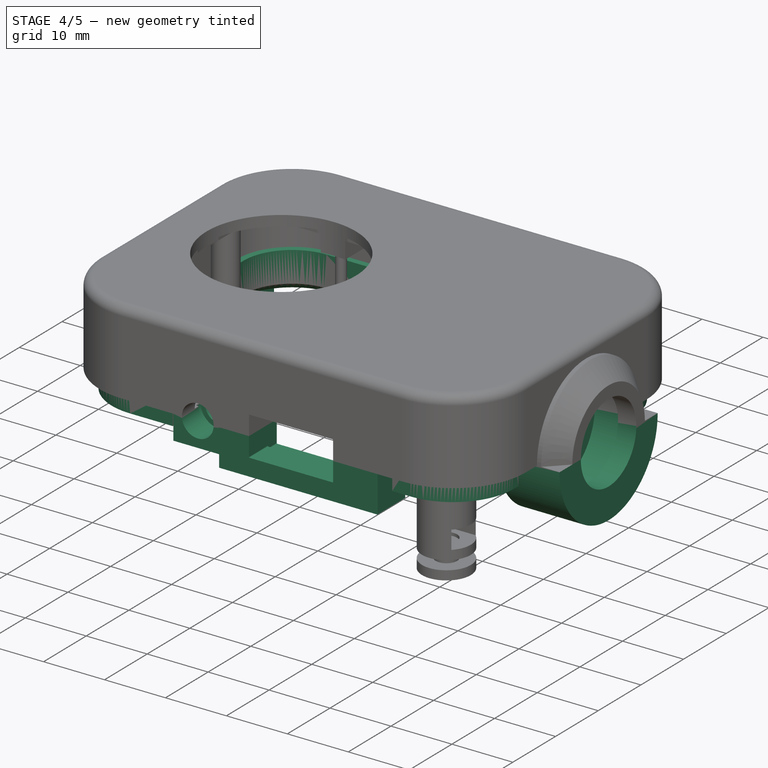
[diagram: stage 4 of 5 — iso view after this stage's code; geometry added in this stage tinted green]
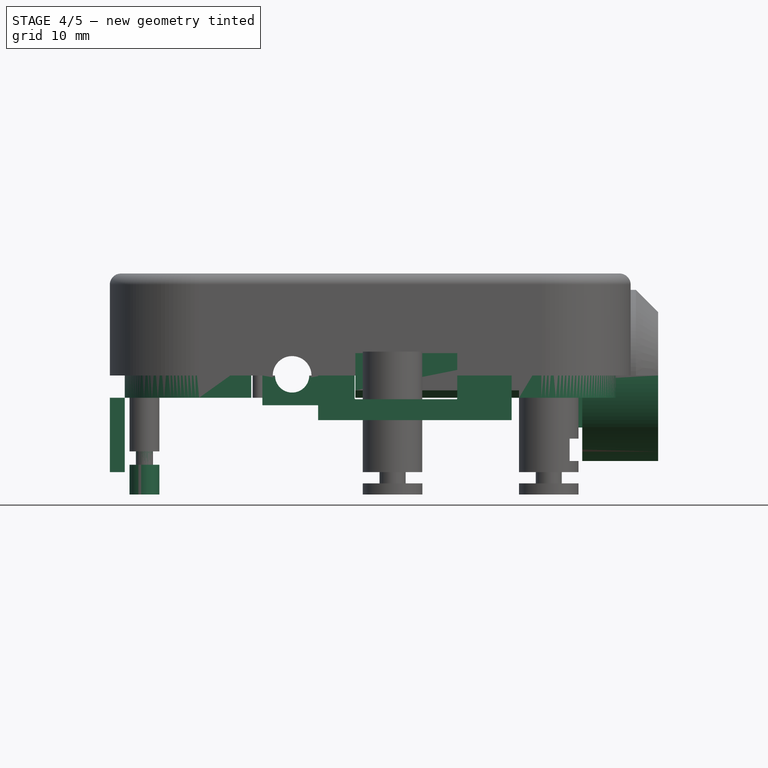
[diagram: stage 4 of 5 — front view after this stage's code; geometry added in this stage tinted green]
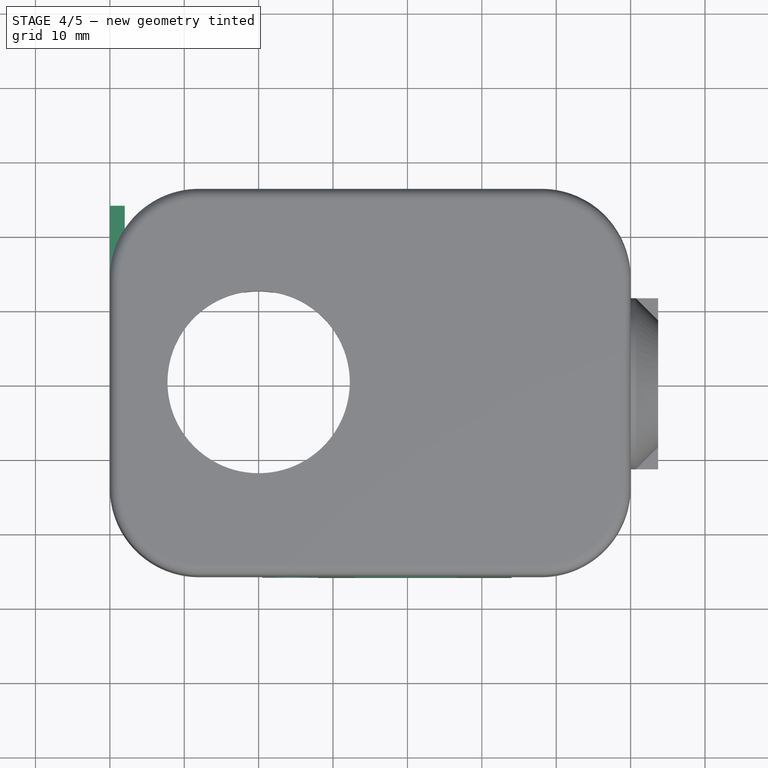
[diagram: stage 4 of 5 — top view after this stage's code; geometry added in this stage tinted green]
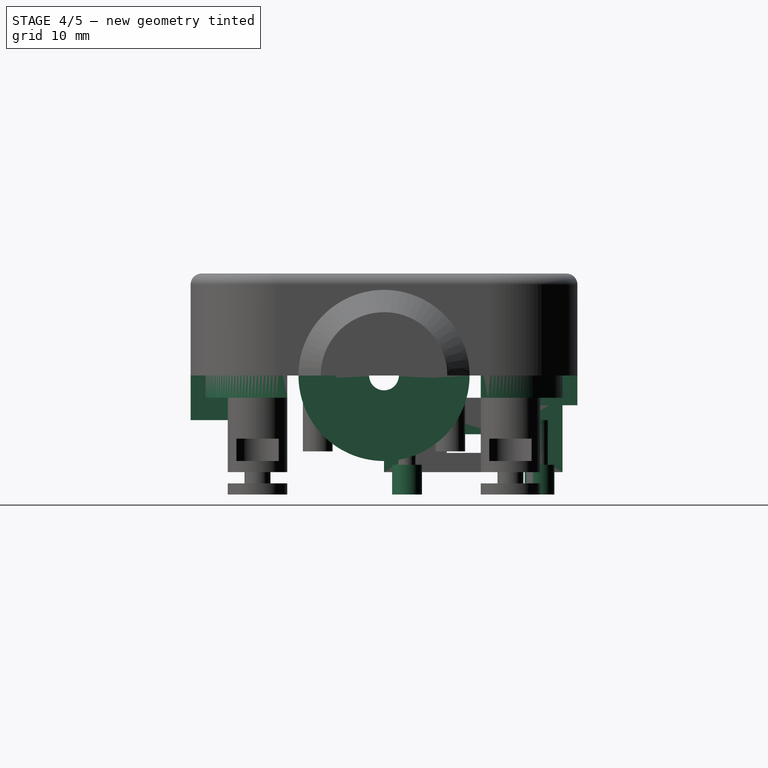
[diagram: stage 4 of 5 — right view after this stage's code; geometry added in this stage tinted green]
FEATURE [Part::Cylinder] Cylinder001  label="Huzzah Stick 1"
  Angle = 360
  Height = 10
  Placement = pos=(2.65,3.1,0) rot=(0,0,1;0rad)
  Radius = 1.15
FEATURE [Part::Cylinder] Cylinder002  label="Huzzah Stick 2"
  Angle = 360
  Height = 10
  Placement = pos=(2.65,20.9,0) rot=(0,0,1;0rad)
  Radius = 1.15
FEATURE [Part::Cylinder] Cylinder007  label="Huzzah Base 1"
  Angle = 360
  Height = 4
  Placement = pos=(2.65,3.1,0) rot=(0,0,1;0rad)
  Radius = 2
FEATURE [Part::Cylinder] Cylinder008  label="Huzzah Base 2"
  Angle = 360
  Height = 4
  Placement = pos=(2.65,20.9,0) rot=(0,0,1;0rad)
  Radius = 2
FEATURE [Part::MultiFuse] Fusion009  label="Huzzah Support 1"
  Placement = pos=(2,0,0) rot=(0,0,1;0rad)
  Shapes = -> [Cylinder001,Cylinder007]
FEATURE [Part::MultiFuse] Fusion010  label="Huzzah Support 2"
  Placement = pos=(2,0,0) rot=(0,0,1;0rad)
  Shapes = -> [Cylinder008,Cylinder002]
FEATURE [Part::Box] Box003  label="Huzzah Front Wall"
  Height = 10
  Length = 2
  Placement = pos=(0,0,3) rot=(0,0,1;0rad)
  Width = 24
FEATURE [Part::Box] Box004  label="Huzzah Front Hole"
  Height = 2.5
  Length = 5
  Placement = pos=(-1,8.43,5.6) rot=(0,0,1;0rad)
  Width = 7
FEATURE [Part::Cut] Cut004  label="Huzzah Front Box"
  Base = -> Box003
  Tool = -> Box004
FEATURE [Part::Chamfer] Chamfer  label="Huzzah Front Chamfered"
  Base = -> Cut004
  Edges = 4 edges r=1.9: [Edge5,Edge6,Edge7,Edge8]
FEATURE [Sketcher::SketchObject] Sketch025  label="Button Socket Sketch"
  Placement = pos=(0,0,0) rot=(0.57735,0.57735,0.57735;2.0944rad)
  sketch-geometry (8):
    g0: LineSegment StartX=6.5 StartY=16.7 StartZ=0 EndX=6.5 EndY=13.7 EndZ=0
    g1: LineSegment StartX=6.5 StartY=13.7 StartZ=0 EndX=8.5 EndY=13.7 EndZ=0
    g2: LineSegment StartX=8.5 StartY=13.7 StartZ=0 EndX=8.5 EndY=8.5 EndZ=0
    g3: LineSegment StartX=8.5 StartY=8.5 StartZ=0 EndX=2 EndY=8.5 EndZ=0
    g4: LineSegment StartX=2 StartY=8.5 StartZ=0 EndX=2 EndY=6.5 EndZ=0
    g5: LineSegment StartX=6.5 StartY=16.7 StartZ=0 EndX=11.5 EndY=16.7 EndZ=0
    g6: LineSegment StartX=11.5 StartY=16.7 StartZ=0 EndX=11.5 EndY=6.5 EndZ=0
    g7: LineSegment StartX=2 StartY=6.5 StartZ=0 EndX=11.5 EndY=6.5 EndZ=0
  constraints (24):
    c: Coincident(g0,g1)
    c: Coincident(g1,g2)
    c: Coincident(g3,g2)
    c: Coincident(g4,g3)
    c: Vertical(g0)
    c: Horizontal(g1)
    c: Vertical(g2)
    c: Horizontal(g3)
    c: Vertical(g4)
    c: DistanceY(g0,g0) = 3
    c: DistanceX(g1,g1) = 2
    c: DistanceY(g2,g2) = 5.2
    c: DistanceY(g4,g4) = 2
    c: DistanceX(g4) = 2
    c: DistanceX(g0) = 6.5
    c: DistanceY(g4) = 6.5
    c: Coincident(g4,g7)
    c: Coincident(g7,g6)
    c: Coincident(g6,g5)
    c: Coincident(g5,g0)
    c: Horizontal(g5)
    c: Horizontal(g7)
    c: Vertical(g6)
    c: DistanceX(g5,g5) = 5
FEATURE [PartDesign::Revolution] Revolution001  label="Button Socket"
  Angle = 180
  Axis = (0,0,1)
  Base = (0,0,0)
  Placement = pos=(0,0,0) rot=(0.57735,0.57735,0.57735;2.0944rad)
  ReferenceAxis = -> Sketch025 [V_Axis]
  Reversed = true
  Sketch = -> Sketch025
FEATURE [Sketcher::SketchObject] Sketch026  label="TB Base Sketch001"
  sketch-geometry (4):
    g0: LineSegment StartX=-3 StartY=3 StartZ=0 EndX=3 EndY=3 EndZ=0
    g1: LineSegment StartX=3 StartY=3 StartZ=0 EndX=3 EndY=-3 EndZ=0
    g2: LineSegment StartX=3 StartY=-3 StartZ=0 EndX=-3 EndY=-3 EndZ=0
    g3: LineSegment StartX=-3 StartY=-3 StartZ=0 EndX=-3 EndY=3 EndZ=0
  constraints (12):
    c: Coincident(g0,g1)
    c: Coincident(g1,g2)
    c: Coincident(g2,g3)
    c: Coincident(g3,g0)
    c: Horizontal(g0)
    c: Horizontal(g2)
    c: Vertical(g1)
    c: Vertical(g3)
    c: DistanceX(g0,g0) = 6
    c: DistanceY(g3,g3) = 6
    c: DistanceY(g-1,g0) = 3
    c: DistanceX(g0,g-1) = 3
FEATURE [PartDesign::Pad] Pad018  label="TB Base001"
  Length = 3.3
  Length2 = 100
  Sketch = -> Sketch026
  Type = 0
FEATURE [Sketcher::SketchObject] Sketch027  label="TB Button Sketch001"
  Placement = pos=(0,0,3.3) rot=(0,0,1;0rad)
  Support = -> Pad018 [Face6]
  sketch-geometry (1):
    g0: Circle CenterX=0 CenterY=0 CenterZ=0 NormalX=0 NormalY=0 NormalZ=1 Radius=1.75
  constraints (2):
    c: Coincident(g0,g-1)
    c: Radius(g0) = 1.75
FEATURE [PartDesign::Pad] Pad019  label="TB Button001"
  Length = 1.7
  Length2 = 100
  Sketch = -> Sketch027
  Type = 0
FEATURE [Sketcher::SketchObject] Sketch028  label="TB Bump Sketch001"
  Placement = pos=(0,0,3.3) rot=(0,0,1;0rad)
  Support = -> Pad019 [Face5]
  sketch-geometry (1):
    g0: Circle CenterX=2.25 CenterY=2.25 CenterZ=0 NormalX=0 NormalY=0 NormalZ=1 Radius=0.5
  constraints (3):
    c: Radius(g0) = 0.5
    c: DistanceY(g-1,g0) = 2.25
    c: DistanceX(g0) = 2.25
FEATURE [PartDesign::Pad] Pad020  label="TB Bump001"
  Length = 0.5
  Length2 = 100
  Sketch = -> Sketch028
  Type = 0
FEATURE [PartDesign::PolarPattern] PolarPattern001
  Angle = 360
  Axis = -> Sketch028 [N_Axis]
  Occurrences = 4
  Originals = -> [Pad020]
FEATURE [Part::MultiFuse] Fusion021  label="Tactile Button Mold Inner"
  Shapes = -> [PolarPattern001,Pad019,Pad018]
FEATURE [Part::Offset] Offset003  label="Tactile Button Mold"
  Fill = false
  Intersection = false
  Join = 0
  Mode = 0
  SelfIntersection = false
  Source = -> Fusion021
  Value = 0.2
FEATURE [Part::Box] Box015  label="Cube"
  Height = 3
  Length = 7
  Placement = pos=(0,-7,0) rot=(0,0,1;0rad)
  Width = 14
FEATURE [Part::Box] Box016  label="Cube001"
  Height = 10
  Length = 4.8
  Placement = pos=(2.2,-1,-2) rot=(0,0,1;0rad)
  Width = 2
FEATURE [Part::Box] Box017  label="Cube002"
  Height = 8
  Length = 3
  Placement = pos=(4,-7,0) rot=(0,0,1;0rad)
  Width = 14
FEATURE [Part::Box] Box018  label="Cube003"
  Height = 8
  Length = 7
  Placement = pos=(0,4,0) rot=(0,0,1;0rad)
  Width = 3
FEATURE [Part::Box] Box019  label="Cube004"
  Height = 8
  Length = 7
  Placement = pos=(0,-7,0) rot=(0,0,1;0rad)
  Width = 3
FEATURE [Part::MultiFuse] Fusion022  label="Tactile Button Box Base"
  Shapes = -> [Box015,Box018,Box016,Box017,Box019]
FEATURE [Part::Cut] Cut010
  Base = -> Fusion022
  Tool = -> Offset003
FEATURE [Part::MultiFuse] Fusion025  label="Button Box Upper"
  Placement = pos=(57,0,16) rot=(0,1,0;1.5708rad)
  Shapes = -> [Revolution001,Cut010]
FEATURE [Part::Box] Box011  label="Sharp Box Top"
  Height = 6.5
  Length = 26
  Width = 6
FEATURE [Part::Box] Box012  label="Sharp Box Slot"
  Height = 8
  Length = 4
  Placement = pos=(20,0,-4.5) rot=(0,0,1;0rad)
  Width = 6
FEATURE [Part::MultiFuse] Fusion018  label="Sharp Box Lower Body"
  Shapes = -> [Box012,Box011]
FEATURE [Sketcher::SketchObject] Sketch022  label="Sharp Board Sketch002"
  sketch-geometry (4):
    g0: LineSegment StartX=24 StartY=8.89 StartZ=0 EndX=0 EndY=8.89 EndZ=0
    g1: LineSegment StartX=0 StartY=8.89 StartZ=0 EndX=0 EndY=0 EndZ=0
    g2: LineSegment StartX=0 StartY=0 StartZ=0 EndX=24 EndY=0 EndZ=0
    g3: LineSegment StartX=24 StartY=0 StartZ=0 EndX=24 EndY=8.89 EndZ=0
  constraints (11):
    c: Coincident(g0,g1)
    c: Coincident(g1,g2)
    c: Coincident(g2,g3)
    c: Coincident(g3,g0)
    c: Horizontal(g0)
    c: Horizontal(g2)
    c: Vertical(g1)
    c: Vertical(g3)
    c: Coincident(g1,g-1)
    c: DistanceY(g0) = 8.89
    c: DistanceX(g0) = 24
FEATURE [PartDesign::Pad] Pad017  label="Sharp Board002"
  Length = 1.5748
  Length2 = 100
  Sketch = -> Sketch022
  Type = 0
FEATURE [Sketcher::SketchObject] Sketch023  label="Sharp Sensor Sketch002"
  Placement = pos=(0,0,0) rot=(0.57735,0.57735,0.57735;2.0944rad)
  sketch-geometry (8):
    g0: LineSegment StartX=0 StartY=0 StartZ=0 EndX=7 EndY=0 EndZ=0
    g1: LineSegment StartX=7 StartY=0 StartZ=0 EndX=7 EndY=3.25 EndZ=0
    g2: LineSegment StartX=0 StartY=0 StartZ=0 EndX=0 EndY=3.25 EndZ=0
    g3: LineSegment StartX=0 StartY=3.25 StartZ=0 EndX=0.4 EndY=3.25 EndZ=0
    g4: LineSegment StartX=7 StartY=3.25 StartZ=0 EndX=6.6 EndY=3.25 EndZ=0
    g5: LineSegment StartX=6.6 StartY=3.25 StartZ=0 EndX=6.6 EndY=7.95 EndZ=0
    g6: LineSegment StartX=0.4 StartY=3.25 StartZ=0 EndX=0.4 EndY=7.95 EndZ=0
    g7: LineSegment StartX=0.4 StartY=7.95 StartZ=0 EndX=6.6 EndY=7.95 EndZ=0
  constraints (23):
    c: Horizontal(g7)
    c: Vertical(g2)
    c: Horizontal(g3)
    c: Horizontal(g4)
    c: Vertical(g5)
    c: Vertical(g6)
    c: Vertical(g1)
    c: Horizontal(g0)
    c: DistanceX(g0,g0) = 7
    c: DistanceY(g5,g5) = 4.7
    c: DistanceY(g6,g6) = 4.7
    c: DistanceX(g3,g3) = 0.4
    c: DistanceX(g4,g4) = 0.4
    c: Coincident(g0,g2)
    c: Coincident(g0,g1)
    c: Coincident(g1,g4)
    c: Coincident(g2,g3)
    c: Coincident(g3,g6)
    c: Coincident(g4,g5)
    c: Coincident(g6,g7)
    c: Coincident(g5,g7)
    c: DistanceY(g0,g5) = 7.95
    c: Coincident(g0,g-1)
FEATURE [Part::Extrusion] Extrude002  label="Sharp Sensor002"
  Base = -> Sketch023
  Dir = (13.6,0,0)
  Placement = pos=(4,1,1.5748) rot=(0,0,1;0rad)
  Solid = true
FEATURE [Part::MultiFuse] Fusion020  label="Sharp Mold001"
  Shapes = -> [Pad017,Extrude002]
FEATURE [Part::Offset] Offset002  label="Sharp Mold Widened Lower"
  Fill = false
  Intersection = false
  Join = 0
  Mode = 0
  Placement = pos=(1,1.5,-2.8) rot=(0,0,1;0rad)
  SelfIntersection = false
  Source = -> Fusion020
  Value = 0.1
FEATURE [Part::Cut] Cut008  label="Sharp Box Lower"
  Base = -> Fusion018
  Placement = pos=(28,-19.5,10) rot=(1,0,0;1.5708rad)
  Tool = -> Offset002
FEATURE [Part::Box] Box  label="LED Cube Down"
  Height = 4
  Length = 8
  Placement = pos=(-4,-3,-4) rot=(0,0,1;0rad)
  Width = 8
FEATURE [Part::Cut] Cut001  label="LED Slot Down"
  Base = -> Box
  Placement = pos=(24.5,-21,16) rot=(0,0,1;3.14159rad)
  Tool = -> Fusion004
FEATURE [Part::Box] Box025  label="LED Cube Down001"
  Height = 4
  Length = 8
  Placement = pos=(-4,-3,-4) rot=(0,0,1;0rad)
  Width = 8
FEATURE [Part::Cut] Cut012  label="LED Slot Down001"
  Base = -> Box025
  Placement = pos=(24.5,21,16) rot=(0,0,1;0rad)
  Tool = -> Fusion027
FEATURE [Part::Fillet] Fillet006  label="Lower Walls Outer Rounded002"
  Base = -> Box040
  Edges = 4 edges r=10: [Edge1,Edge3,Edge5,Edge7]
FEATURE [Part::Cut] Cut022
  Base = -> Fillet006
  Placement = pos=(0,0,13) rot=(0,0,1;0rad)
  Tool = -> Fillet007
FEATURE [Part::Chamfer] Chamfer004
  Base = -> Cut022
  Edges = 16 edges r=1: [Edge1,Edge5,Edge6,Edge7,Edge8,Edge9,Edge10,Edge11,Edge29,Edge30,Edge31,Edge32,Edge33,Edge34,Edge35,Edge36]
FEATURE [Part::Cut] Cut023  label="Rail"
  Base = -> Chamfer004
  Tool = -> Fusion037
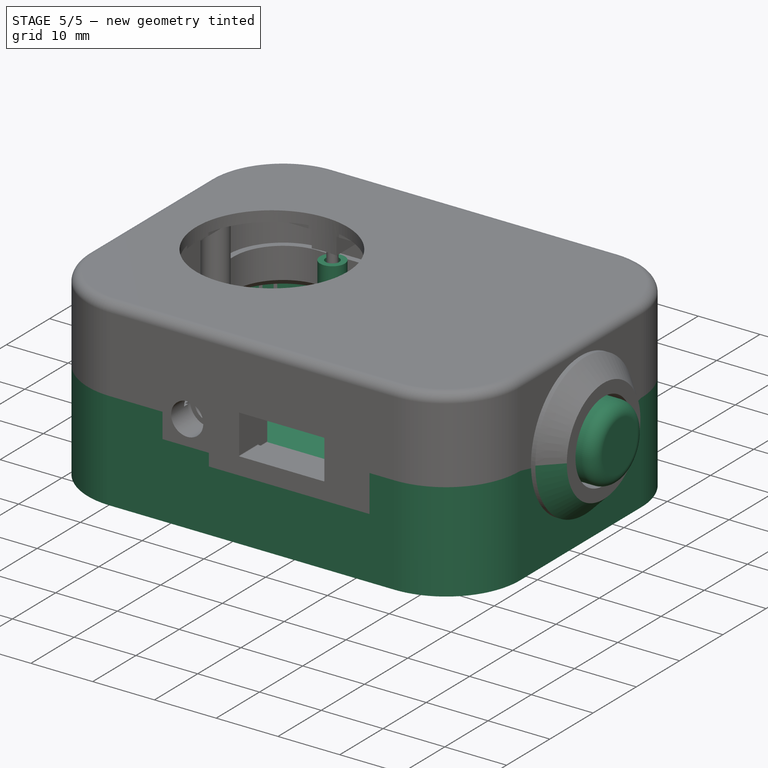
[diagram: stage 5 of 5 — iso view after this stage's code; geometry added in this stage tinted green]
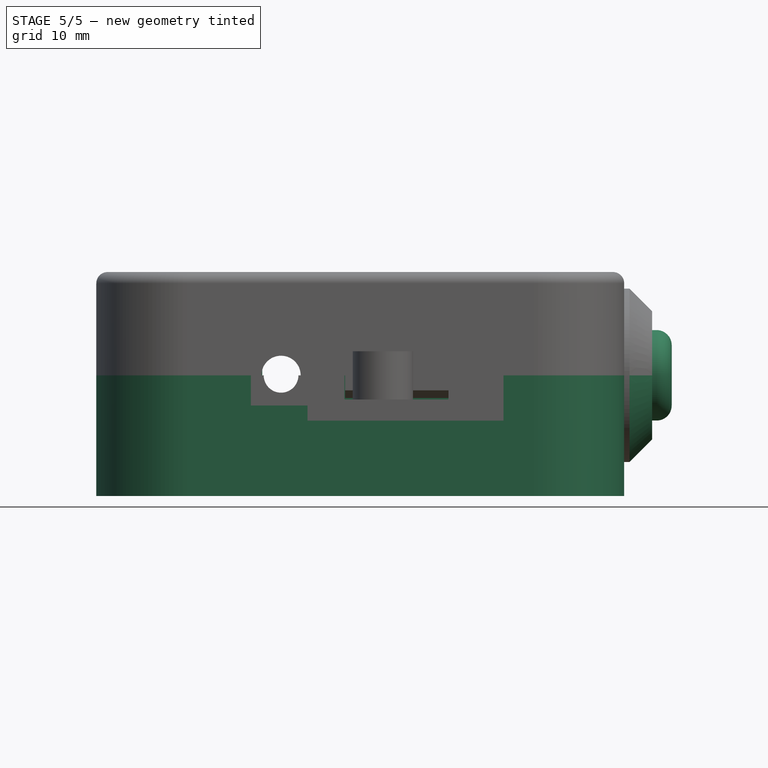
[diagram: stage 5 of 5 — front view after this stage's code; geometry added in this stage tinted green]
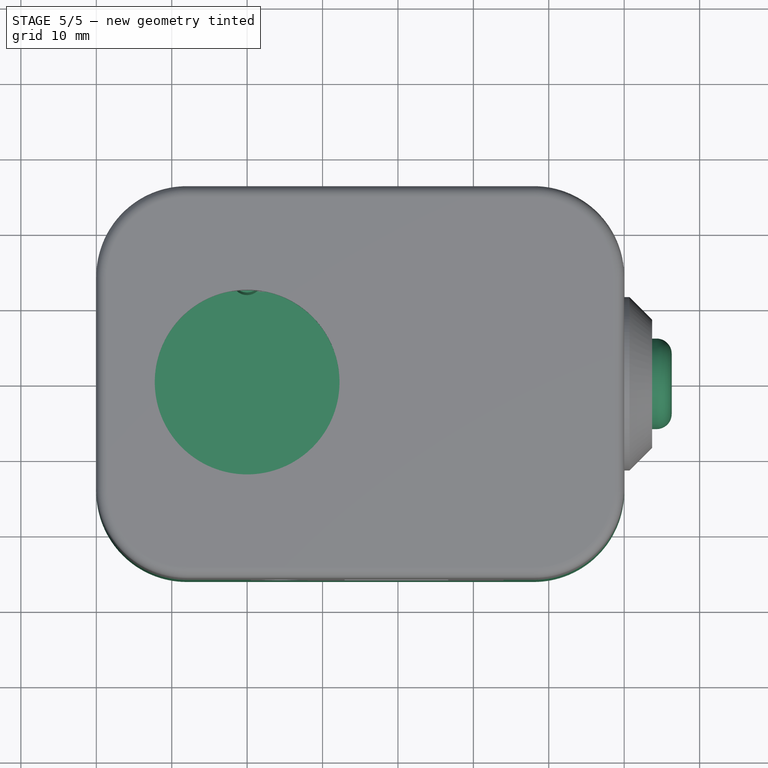
[diagram: stage 5 of 5 — top view after this stage's code; geometry added in this stage tinted green]
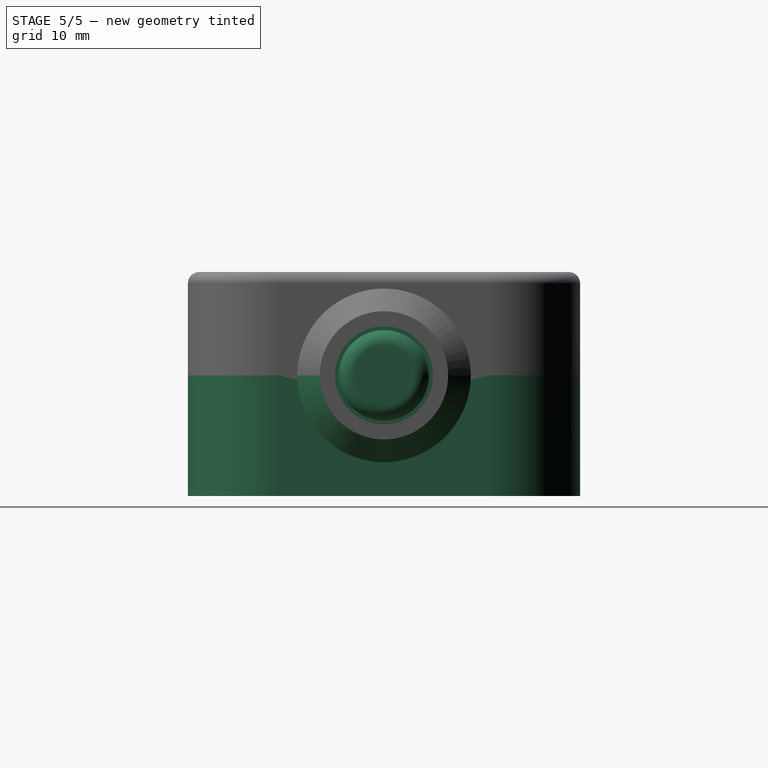
[diagram: stage 5 of 5 — right view after this stage's code; geometry added in this stage tinted green]
FEATURE [Sketcher::SketchObject] Sketch014  label="Huzzah Board Base Sketch001"
  sketch-geometry (4):
    g0: LineSegment StartX=0 StartY=11.43 StartZ=0 EndX=50.8 EndY=11.43 EndZ=0
    g1: LineSegment StartX=50.8 StartY=11.43 StartZ=0 EndX=50.8 EndY=-11.43 EndZ=0
    g2: LineSegment StartX=50.8 StartY=-11.43 StartZ=0 EndX=0 EndY=-11.43 EndZ=0
    g3: LineSegment StartX=0 StartY=-11.43 StartZ=0 EndX=0 EndY=11.43 EndZ=0
  constraints (12):
    c: Coincident(g0,g1)
    c: Coincident(g1,g2)
    c: Coincident(g2,g3)
    c: Coincident(g3,g0)
    c: Horizontal(g0)
    c: Horizontal(g2)
    c: Vertical(g1)
    c: Vertical(g3)
    c: DistanceX(g0,g-1) = 0
    c: DistanceY(g-1,g0) = 11.43
    c: DistanceX(g0,g0) = 50.8
    c: DistanceY(g3,g3) = 22.86
FEATURE [PartDesign::Pad] Pad012  label="Huzzah Board Base001"
  Length = 8
  Length2 = 100
  Sketch = -> Sketch014
  Type = 0
FEATURE [Sketcher::SketchObject] Sketch015  label="Huzzah Holes Sketch001"
  sketch-geometry (4):
    g0: Circle CenterX=2.54 CenterY=8.89 CenterZ=0 NormalX=0 NormalY=0 NormalZ=1 Radius=1.27
    g1: Circle CenterX=2.54 CenterY=-8.89 CenterZ=0 NormalX=0 NormalY=0 NormalZ=1 Radius=1.27
    g2: Circle CenterX=48.26 CenterY=9.525 CenterZ=0 NormalX=0 NormalY=0 NormalZ=1 Radius=1.143
    g3: Circle CenterX=48.26 CenterY=-9.525 CenterZ=0 NormalX=0 NormalY=0 NormalZ=1 Radius=1.143
  constraints (12):
    c: Radius(g0) = 1.27
    c: Radius(g1) = 1.27
    c: Radius(g3) = 1.143
    c: Radius(g2) = 1.143
    c: DistanceX(g0,g1) = 0
    c: DistanceX(g2,g3) = 0
    c: DistanceX(g0,g2) = 45.72
    c: DistanceX(g-1,g0) = 2.54
    c: DistanceY(g1,g0) = 17.78
    c: DistanceY(g3,g2) = 19.05
    c: DistanceY(g-1,g0) = 8.89
    c: DistanceY(g-1,g2) = 9.525
FEATURE [PartDesign::Pad] Pad013  label="Huzzah Holes001"
  Length = 8
  Length2 = 100
  Sketch = -> Sketch015
  Type = 0
FEATURE [Sketcher::SketchObject] Sketch016  label="Huzzah Leeway Sketch001"
  Placement = pos=(0,0,1.6) rot=(0,0,1;0rad)
  sketch-geometry (8):
    g0: LineSegment StartX=0 StartY=11.43 StartZ=0 EndX=5 EndY=11.43 EndZ=0
    g1: LineSegment StartX=5 StartY=11.43 StartZ=0 EndX=5 EndY=6.43 EndZ=0
    g2: LineSegment StartX=5 StartY=6.43 StartZ=0 EndX=0 EndY=6.43 EndZ=0
    g3: LineSegment StartX=0 StartY=6.43 StartZ=0 EndX=0 EndY=11.43 EndZ=0
    g4: LineSegment StartX=0 StartY=-6.43 StartZ=0 EndX=5 EndY=-6.43 EndZ=0
    g5: LineSegment StartX=5 StartY=-6.43 StartZ=0 EndX=5 EndY=-11.43 EndZ=0
    g6: LineSegment StartX=5 StartY=-11.43 StartZ=0 EndX=0 EndY=-11.43 EndZ=0
    g7: LineSegment StartX=0 StartY=-11.43 StartZ=0 EndX=0 EndY=-6.43 EndZ=0
  constraints (24):
    c: Coincident(g0,g1)
    c: Coincident(g1,g2)
    c: Coincident(g2,g3)
    c: Coincident(g3,g0)
    c: Horizontal(g0)
    c: Horizontal(g2)
    c: Vertical(g1)
    c: Vertical(g3)
    c: Coincident(g4,g5)
    c: Coincident(g5,g6)
    c: Coincident(g6,g7)
    c: Coincident(g7,g4)
    c: Horizontal(g4)
    c: Horizontal(g6)
    c: Vertical(g5)
    c: Vertical(g7)
    c: DistanceY(g7,g7) = 5
    c: DistanceY(g3,g3) = 5
    c: DistanceX(g0,g0) = 5
    c: DistanceX(g4,g4) = 5
    c: DistanceY(g0) = 11.43
    c: DistanceY(g6) = -11.43
    c: PointOnObject(g6,g-2)
    c: PointOnObject(g0,g-2)
FEATURE [PartDesign::Pad] Pad014  label="Huzzah Leeway001"
  Length = 8
  Length2 = 100
  Placement = pos=(0,0,1.6) rot=(0,0,1;0rad)
  Sketch = -> Sketch016
  Type = 0
FEATURE [Part::MultiFuse] Fusion006  label="Huzzah Subtraction001"
  Shapes = -> [Pad014,Pad013]
FEATURE [Part::Cut] Cut003  label="Huzzah Thick Base"
  Base = -> Pad012
  Tool = -> Fusion006
FEATURE [Part::Offset] Offset  label="Huzzah Thick"
  Fill = false
  Intersection = false
  Join = 0
  Mode = 0
  Placement = pos=(2.1,12,4) rot=(0,0,1;0rad)
  SelfIntersection = false
  Source = -> Cut003
  Value = 0.1
FEATURE [Part::Box] Box002  label="Huzzah Floor"
  Height = 3
  Length = 54
  Width = 24
FEATURE [Part::Cylinder] Cylinder003  label="Huzzah Base 3"
  Angle = 360
  Height = 4
  Placement = pos=(48.36,2.48,0) rot=(0,0,1;0rad)
  Radius = 2
FEATURE [Part::Cylinder] Cylinder004  label="Huzzah Base 4"
  Angle = 360
  Height = 4
  Placement = pos=(48.36,21.53,0) rot=(0,0,1;0rad)
  Radius = 2
FEATURE [Part::Cylinder] Cylinder005  label="Huzzah Stick 3"
  Angle = 360
  Height = 7
  Placement = pos=(48.36,2.48,0) rot=(0,0,1;0rad)
  Radius = 1
FEATURE [Part::Cylinder] Cylinder006  label="Huzzah Stick 4"
  Angle = 360
  Height = 7
  Placement = pos=(48.36,21.53,0) rot=(0,0,1;0rad)
  Radius = 1
FEATURE [Part::MultiFuse] Fusion007  label="Huzzah Support 4"
  Placement = pos=(2,0,0) rot=(0,0,1;0rad)
  Shapes = -> [Cylinder004,Cylinder006]
FEATURE [Part::MultiFuse] Fusion008  label="Huzzah Support 3"
  Placement = pos=(2,0,0) rot=(0,0,1;0rad)
  Shapes = -> [Cylinder005,Cylinder003]
FEATURE [Part::MultiFuse] Fusion011  label="Huzzah Box Construct"
  Shapes = -> [Box002,Chamfer,Fusion010,Fusion009,Fusion008,Fusion007]
FEATURE [Part::Cut] Cut005  label="Huzzah Box"
  Base = -> Fusion011
  Placement = pos=(0,-12,0) rot=(0,0,1;0rad)
  Tool = -> Offset
FEATURE [Part::MultiFuse] Fusion  label="Lower Slots"
  Shapes = -> [Cut012,Cut001,Cut008,Fusion025,Cut005]
FEATURE [Part::Box] Box027  label="Background Panel"
  Height = 3
  Length = 70
  Placement = pos=(0,-26,0) rot=(0,0,1;0rad)
  Width = 52
FEATURE [Part::Fillet] Fillet  label="Background Panel Rounded"
  Base = -> Box027
  Edges = 4 edges r=12: [Edge1,Edge3,Edge5,Edge7]
FEATURE [Part::Box] Box028  label="Lower Walls Outer"
  Height = 16
  Length = 70
  Placement = pos=(0,-26,0) rot=(0,0,1;0rad)
  Width = 52
FEATURE [Part::Box] Box029  label="Lower Walls Inner"
  Height = 16
  Length = 66
  Placement = pos=(2,-24,0) rot=(0,0,1;0rad)
  Width = 48
FEATURE [Part::Fillet] Fillet001  label="Lower Walls Outer Rounded"
  Base = -> Box028
  Edges = 4 edges r=12: [Edge1,Edge3,Edge5,Edge7]
FEATURE [Part::Fillet] Fillet002  label="Lower Walls Inner Rounded"
  Base = -> Box029
  Edges = 4 edges r=10: [Edge1,Edge3,Edge5,Edge7]
FEATURE [Part::Cut] Cut
  Base = -> Fillet001
  Tool = -> Fillet002
FEATURE [Part::Box] Box030  label="Cube010"
  Height = 12
  Length = 5
  Placement = pos=(-1,-11,0) rot=(0,0,1;0rad)
  Width = 22
FEATURE [Part::Box] Box031  label="Cube011"
  Height = 7
  Length = 7
  Placement = pos=(21,-30,12.5) rot=(0,0,1;0rad)
  Width = 60
FEATURE [Part::Box] Box032  label="Cube012"
  Height = 11
  Length = 25
  Placement = pos=(28.5,-27,10.5) rot=(0,0,1;0rad)
  Width = 10
FEATURE [Part::Cylinder] Cylinder013  label="Cylinder"
  Angle = 360
  Height = 5
  Placement = pos=(67,0,16) rot=(0,1,0;1.5708rad)
  Radius = 11
FEATURE [Part::MultiFuse] Fusion029
  Shapes = -> [Cylinder013,Box030,Box031,Box032]
FEATURE [Part::Cut] Cut014  label="Lower Walls"
  Base = -> Cut
  Tool = -> Fusion029
FEATURE [Sketcher::SketchObject] Sketch024  label="Button Sketch"
  Placement = pos=(0,0,0) rot=(0.57735,0.57735,0.57735;2.0944rad)
  sketch-geometry (9):
    g0: LineSegment StartX=0 StartY=5.3 StartZ=0 EndX=0 EndY=19.3 EndZ=0
    g1: LineSegment StartX=0 StartY=19.3 StartZ=0 EndX=4 EndY=19.3 EndZ=0
    g2: ArcOfCircle CenterX=4 CenterY=17.3 CenterZ=0 NormalX=0 NormalY=0 NormalZ=1 Radius=2 StartAngle=0 EndAngle=1.5708
    g3: LineSegment StartX=6 StartY=17.3 StartZ=0 EndX=6 EndY=13.3 EndZ=0
    g4: LineSegment StartX=6 StartY=13.3 StartZ=0 EndX=8 EndY=13.3 EndZ=0
    g5: LineSegment StartX=8 StartY=13.3 StartZ=0 EndX=8 EndY=11.3 EndZ=0
    g6: LineSegment StartX=8 StartY=11.3 StartZ=0 EndX=1.2 EndY=11.3 EndZ=0
    g7: LineSegment StartX=1.2 StartY=11.3 StartZ=0 EndX=1.2 EndY=5.3 EndZ=0
    g8: LineSegment StartX=0 StartY=5.3 StartZ=0 EndX=1.2 EndY=5.3 EndZ=0
  constraints (28):
    c: Coincident(g0,g8)
    c: Coincident(g0,g1)
    c: Coincident(g1,g2)
    c: Coincident(g2,g3)
    c: Coincident(g3,g4)
    c: Coincident(g4,g5)
    c: Coincident(g6,g5)
    c: Coincident(g7,g6)
    c: Coincident(g8,g7)
    c: Horizontal(g1)
    c: Vertical(g3)
    c: Horizontal(g4)
    c: Vertical(g5)
    c: Horizontal(g6)
    c: Vertical(g7)
    c: Horizontal(g8)
    c: Vertical(g0)
    c: PointOnObject(g0,g-2)
    c: DistanceX(g8,g8) = 1.2
    c: Radius(g2) = 2
    c: Angle(g2) = 1.5708
    c: DistanceX(g2,g1) = 0
    c: DistanceY(g3,g3) = 4
    c: DistanceX(g4,g4) = 2
    c: DistanceX(g1,g1) = 4
    c: DistanceY(g5,g5) = 2
    c: DistanceY(g0) = 5.3
    c: DistanceY(g7,g7) = 6
FEATURE [Part::Revolution] Revolve  label="Button"
  Angle = 360
  Axis = (0,0,1)
  Base = (0,0,0)
  Placement = pos=(57,0,16) rot=(0,1,0;1.5708rad)
  Solid = true
  Source = -> Sketch024
FEATURE [Part::Cylinder] Cylinder019  label="Cylinder Outer002"
  Angle = 360
  Height = 22.8
  Radius = 2
FEATURE [Part::Cylinder] Cylinder020  label="Cylinder Inner002"
  Angle = 360
  Height = 30
  Radius = 1.1
FEATURE [Part::Cut] Cut020
  Base = -> Cylinder019
  Placement = pos=(20,14,0) rot=(0,0,1;0rad)
  Tool = -> Cylinder020
FEATURE [Part::Cylinder] Cylinder021  label="Cylinder Outer003"
  Angle = 360
  Height = 22.8
  Radius = 2
FEATURE [Part::Cylinder] Cylinder022  label="Cylinder Inner003"
  Angle = 360
  Height = 30
  Radius = 1.1
FEATURE [Part::Cut] Cut021
  Base = -> Cylinder021
  Placement = pos=(20,-14,0) rot=(0,0,1;0rad)
  Tool = -> Cylinder022
FEATURE [Part::MultiFuse] Fusion032  label="Lower Tubes"
  Shapes = -> [Cut020,Cut021]
FEATURE [Part::Chamfer] Chamfer002  label="Lower Slots Chamfered"
  Base = -> Fusion
  Edges = 1 edges r=3: [Edge263]
FEATURE [Part::MultiFuse] Fusion035  label="Lower Part No Rail"
  Shapes = -> [Fusion032,Cut014,Fillet,Chamfer002]
FEATURE [Part::MultiFuse] Fusion038  label="Lower Part"
  Shapes = -> [Fusion035,Cut023]
FEATURE [Part::Cut] Cut028  label="Lower Part Fastened"
  Base = -> Fusion038
  Tool = -> Fusion053
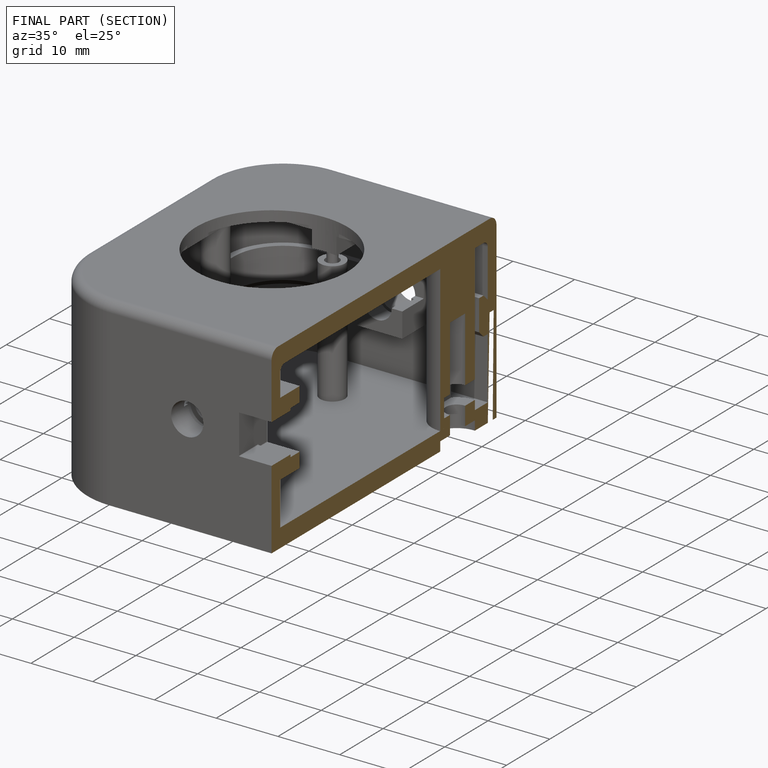
[diagram: finished part — half-section view (interior)]
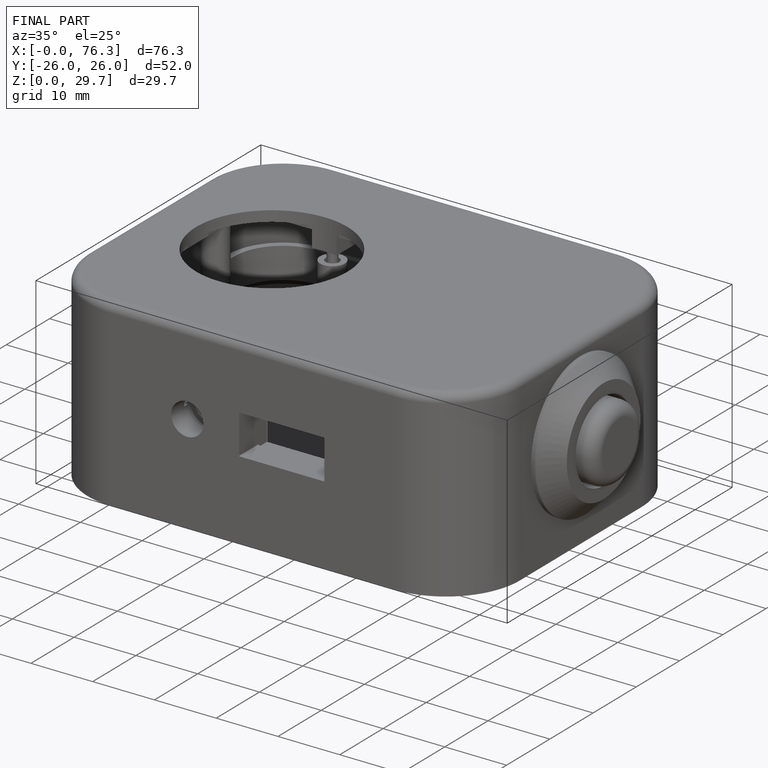
[diagram: finished part — iso view with bounding-box wireframe]
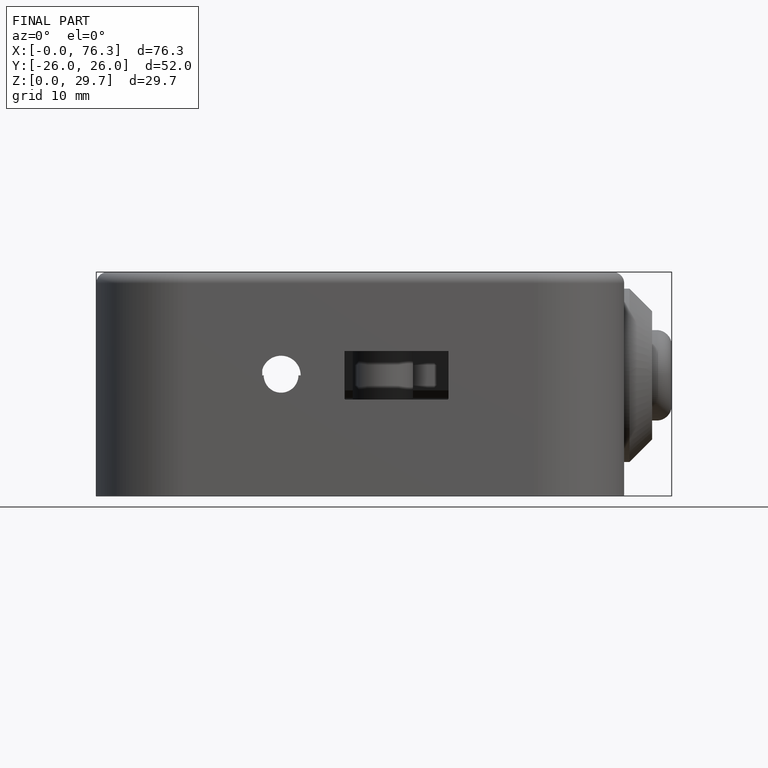
[diagram: finished part — front view with bounding-box wireframe]
